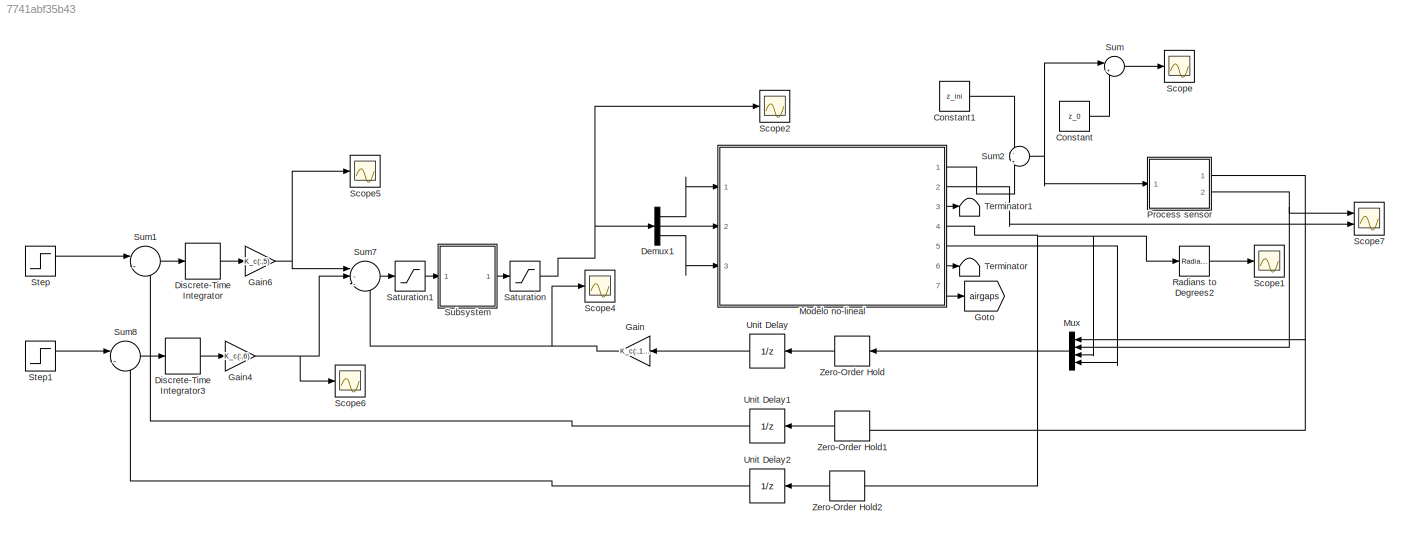
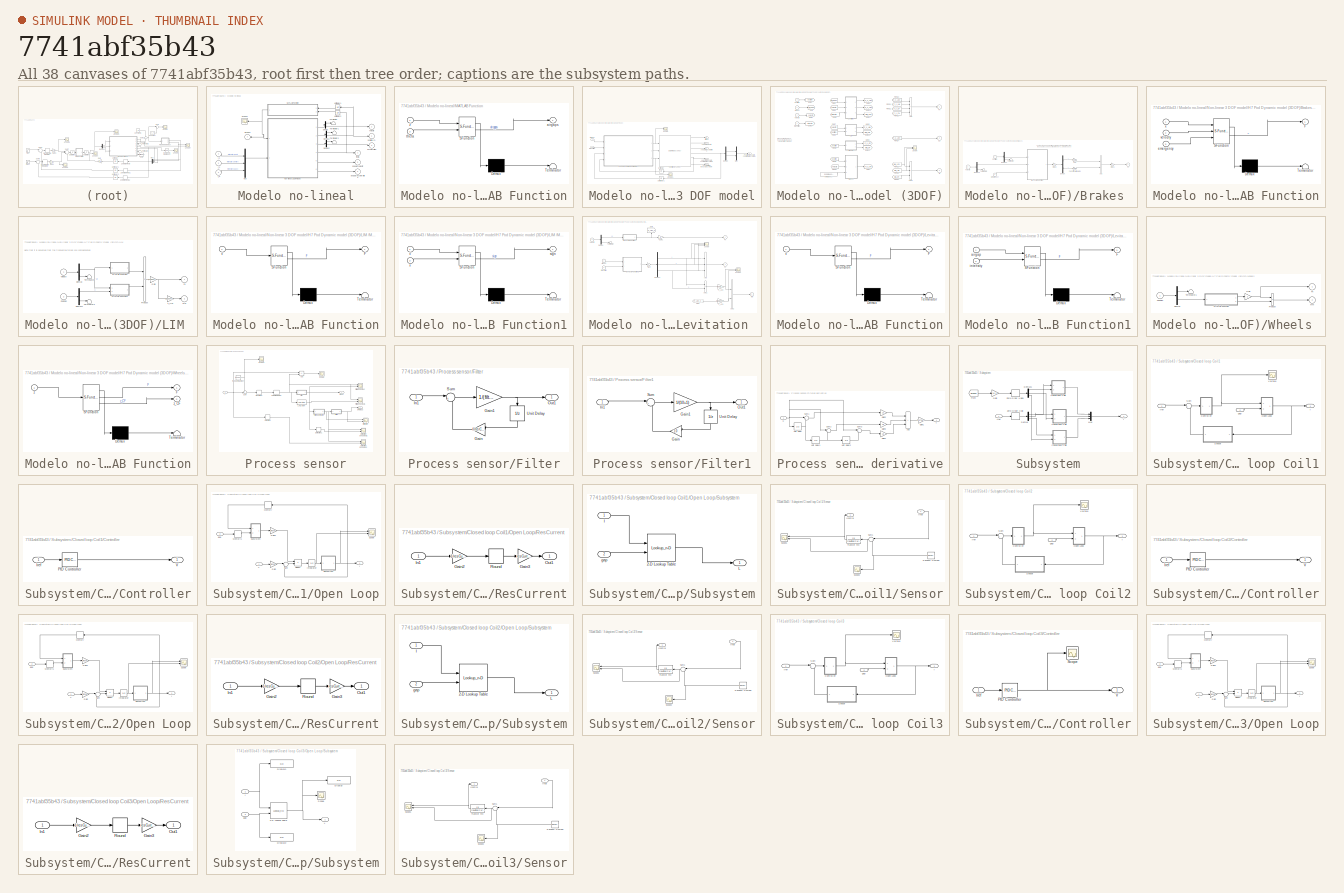
[diagram: thumbnail index - all 38 canvases of the model, root first then tree order]
MODEL slx_7741abf35b43
KIND model
CONFIG AbsTol = auto
CONFIG EnableMultiTasking = off
CONFIG FixedStep = auto
CONFIG MaxStep = auto
CONFIG MinStep = auto
CONFIG RelTol = 1e-9
CONFIG SampleTimeConstraint = Unconstrained
CONFIG Solver = ode45
CONFIG SolverName = ode45
CONFIG StartTime = 0.0
CONFIG StopTime = 20
BLOCK [Constant] Constant
  Value = z_0
BLOCK [Constant] Constant1
  SampleTime = T
  Value = z_ini
BLOCK [Demux] Demux1
  Outputs = 3
  Ports = [1, 3]
BLOCK [DiscreteIntegrator] Discrete-Time Integrator
  ICPrevOutput = DiscIntNeverNeededParam
  ICPrevScaledInput = DiscIntNeverNeededParam
  InitialConditionSetting = Auto
  Ports = [1, 1]
  SampleTime = T
BLOCK [DiscreteIntegrator] Discrete-Time Integrator3
  ICPrevOutput = DiscIntNeverNeededParam
  ICPrevScaledInput = DiscIntNeverNeededParam
  InitialConditionSetting = Auto
  Ports = [1, 1]
  SampleTime = T
BLOCK [Gain] Gain
  Gain = K_c(:,1:4)
  Multiplication = Matrix(K*u)
BLOCK [Gain] Gain4
  Gain = K_c(:,6)
BLOCK [Gain] Gain6
  Gain = K_c(:,5)
BLOCK [Goto] Goto
  GotoTag = airgaps
  TagVisibility = global
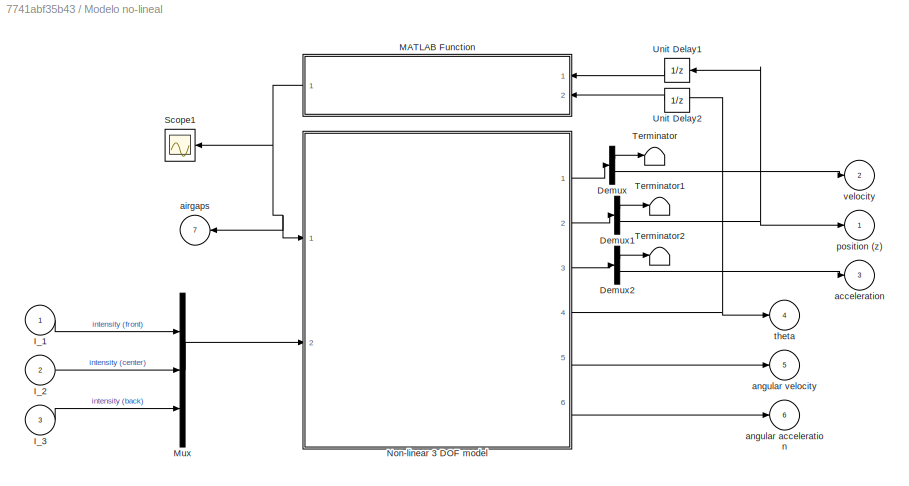
BLOCK [SubSystem] Modelo no-lineal
  Ports = [3, 7]
  RequestExecContextInheritance = off
BLOCK [Demux] Modelo no-lineal/Demux
  Outputs = 2
  Ports = [1, 2]
BLOCK [Demux] Modelo no-lineal/Demux1
  Outputs = 2
  Ports = [1, 2]
BLOCK [Demux] Modelo no-lineal/Demux2
  Outputs = 2
  Ports = [1, 2]
BLOCK [Inport] Modelo no-lineal/I_1
BLOCK [Inport] Modelo no-lineal/I_2
  Port = 2
BLOCK [Inport] Modelo no-lineal/I_3
  Port = 3
BLOCK [SubSystem] Modelo no-lineal/MATLAB Function
  ErrorFcn = Stateflow.Translate.translate
  PermitHierarchicalResolution = ExplicitOnly
  Ports = [2, 1]
  RequestExecContextInheritance = off
  SFBlockType = MATLAB Function
  TreatAsAtomicUnit = on
BLOCK [Demux] Modelo no-lineal/MATLAB Function/ Demux 
  Outputs = 1
  Ports = [1, 1]
BLOCK [S-Function] Modelo no-lineal/MATLAB Function/ SFunction 
  EnableBusSupport = on
  FunctionName = sf_sfun
  Parameters = pod
  PortCounts = [2 2]
  Ports = [2, 2]
  SFcnIsStateOwnerBlock = off
  SFunctionDeploymentMode = off
  Tag = Stateflow S-Function R19_Modelo_control_INDUCTANCIA_c_2GDL_2021 2
BLOCK [Terminator] Modelo no-lineal/MATLAB Function/ Terminator 
BLOCK [Outport] Modelo no-lineal/MATLAB Function/airgaps
BLOCK [Inport] Modelo no-lineal/MATLAB Function/theta
  Port = 2
BLOCK [Inport] Modelo no-lineal/MATLAB Function/z
BLOCK [Mux] Modelo no-lineal/Mux
  DisplayOption = bar
  Inputs = 3
  Ports = [3, 1]
BLOCK [SubSystem] Modelo no-lineal/Non-linear 3 DOF model
  AncestorBlock = libH7_3DOF/Non-linear 3 DOF model
  Ports = [2, 6]
  RequestExecContextInheritance = off
BLOCK [Reference] Modelo no-lineal/Non-linear 3 DOF model/3dof (Body Axes)  REF=shared3dof/3DOF (Body Axes)
  Ports = [3, 6]
  SourceBlock = shared3dof/3DOF (Body Axes)
  SourceProductBaseCode = AE,PW,DR,MT,UV,VE
  SourceType = 3DOF EoM
BLOCK [Outport] Modelo no-lineal/Non-linear 3 DOF model/Acceleration (body-fixed coordinate system)
  Port = 3
BLOCK [Inport] Modelo no-lineal/Non-linear 3 DOF model/Airgaps
BLOCK [Outport] Modelo no-lineal/Non-linear 3 DOF model/Angular acceleration
  Port = 6
BLOCK [Outport] Modelo no-lineal/Non-linear 3 DOF model/Angular velocity
  Port = 5
BLOCK [Outport] Modelo no-lineal/Non-linear 3 DOF model/Attitude 
  Port = 4
BLOCK [Demux] Modelo no-lineal/Non-linear 3 DOF model/Demux
  Outputs = 2
  Ports = [1, 2]
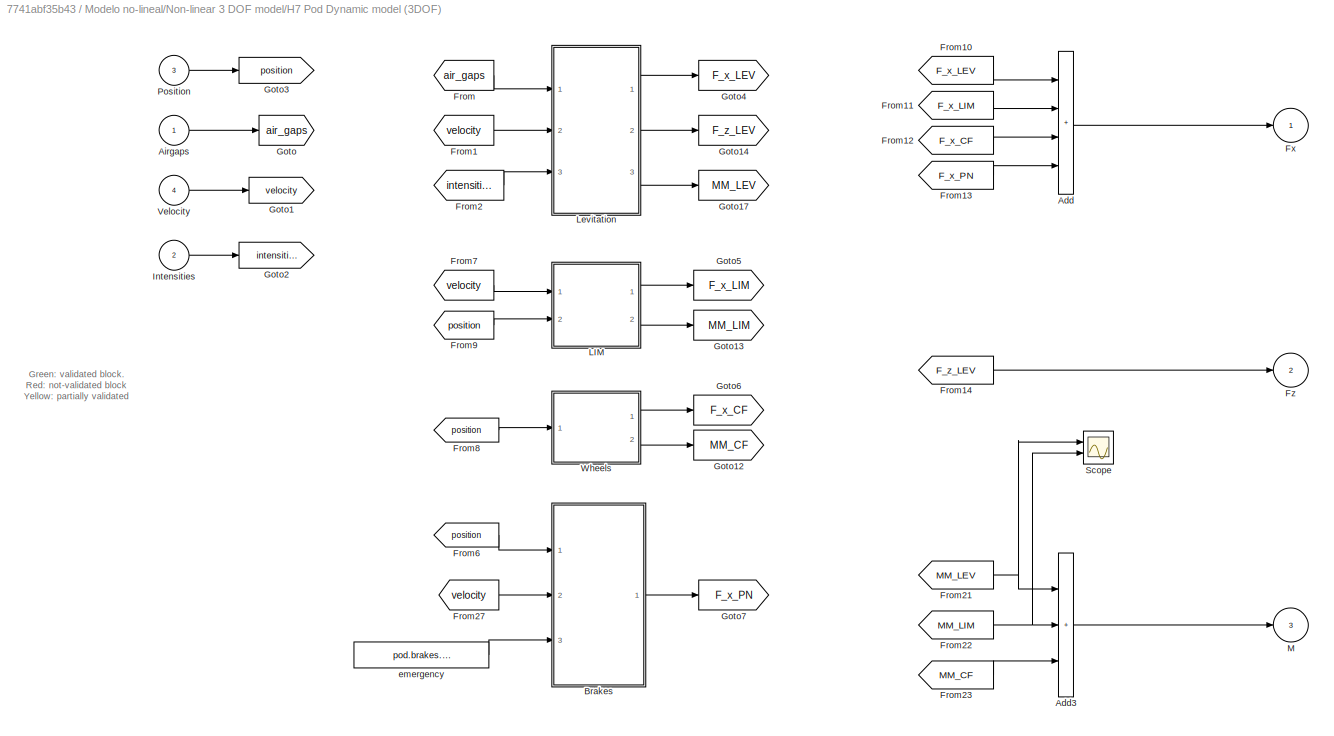
BLOCK [SubSystem] Modelo no-lineal/Non-linear 3 DOF model/H7 Pod Dynamic model (3DOF)
  AncestorBlock = libH7_3DOF/H7 Pod Dynamic model (3DOF)
  Ports = [4, 3]
  RequestExecContextInheritance = off
BLOCK [Sum] Modelo no-lineal/Non-linear 3 DOF model/H7 Pod Dynamic model (3DOF)/Add
  IconShape = rectangular
  Inputs = ++++
  Ports = [4, 1]
BLOCK [Sum] Modelo no-lineal/Non-linear 3 DOF model/H7 Pod Dynamic model (3DOF)/Add3
  IconShape = rectangular
  Inputs = +++
  Ports = [3, 1]
BLOCK [Inport] Modelo no-lineal/Non-linear 3 DOF model/H7 Pod Dynamic model (3DOF)/Airgaps
BLOCK [SubSystem] Modelo no-lineal/Non-linear 3 DOF model/H7 Pod Dynamic model (3DOF)/Brakes 
  AncestorBlock = libH7/H7 Pod Dynamic model/Brakes
  Ports = [3, 1]
  RequestExecContextInheritance = off
BLOCK [Sum] Modelo no-lineal/Non-linear 3 DOF model/H7 Pod Dynamic model (3DOF)/Brakes /Add
  IconShape = rectangular
  Ports = [2, 1]
BLOCK [Demux] Modelo no-lineal/Non-linear 3 DOF model/H7 Pod Dynamic model (3DOF)/Brakes /Demux
  Outputs = 2
  Ports = [1, 2]
BLOCK [Demux] Modelo no-lineal/Non-linear 3 DOF model/H7 Pod Dynamic model (3DOF)/Brakes /Demux2
  Outputs = 2
  Ports = [1, 2]
BLOCK [Demux] Modelo no-lineal/Non-linear 3 DOF model/H7 Pod Dynamic model (3DOF)/Brakes /Demux3
  Outputs = 2
  Ports = [1, 2]
BLOCK [Inport] Modelo no-lineal/Non-linear 3 DOF model/H7 Pod Dynamic model (3DOF)/Brakes /Emergency
  Port = 3
BLOCK [Gain] Modelo no-lineal/Non-linear 3 DOF model/H7 Pod Dynamic model (3DOF)/Brakes /Functionality gains
  Gain = pod.brakes.working_actuators(2)
BLOCK [Outport] Modelo no-lineal/Non-linear 3 DOF model/H7 Pod Dynamic model (3DOF)/Brakes /Fx
BLOCK [Gain] Modelo no-lineal/Non-linear 3 DOF model/H7 Pod Dynamic model (3DOF)/Brakes /Gain
  Gain = pod.brakes.working_actuators(1)
BLOCK [Gain] Modelo no-lineal/Non-linear 3 DOF model/H7 Pod Dynamic model (3DOF)/Brakes /Gain1
  Gain = -1
BLOCK [Gain] Modelo no-lineal/Non-linear 3 DOF model/H7 Pod Dynamic model (3DOF)/Brakes /Gain2
  Gain = 2
BLOCK [SubSystem] Modelo no-lineal/Non-linear 3 DOF model/H7 Pod Dynamic model (3DOF)/Brakes /MATLAB Function
  ErrorFcn = Stateflow.Translate.translate
  PermitHierarchicalResolution = ExplicitOnly
  Ports = [3, 1]
  RequestExecContextInheritance = off
  SFBlockType = MATLAB Function
  TreatAsAtomicUnit = on
BLOCK [Demux] Modelo no-lineal/Non-linear 3 DOF model/H7 Pod Dynamic model (3DOF)/Brakes /MATLAB Function/ Demux 
  Outputs = 1
  Ports = [1, 1]
BLOCK [S-Function] Modelo no-lineal/Non-linear 3 DOF model/H7 Pod Dynamic model (3DOF)/Brakes /MATLAB Function/ SFunction 
  EnableBusSupport = on
  FunctionName = sf_sfun
  Parameters = pod
  PortCounts = [3 2]
  Ports = [3, 2]
  SFcnIsStateOwnerBlock = off
  SFunctionDeploymentMode = off
  Tag = Stateflow S-Function R19_Modelo_control_INDUCTANCIA_c_2GDL_2021 16
BLOCK [Terminator] Modelo no-lineal/Non-linear 3 DOF model/H7 Pod Dynamic model (3DOF)/Brakes /MATLAB Function/ Terminator 
BLOCK [Outport] Modelo no-lineal/Non-linear 3 DOF model/H7 Pod Dynamic model (3DOF)/Brakes /MATLAB Function/F
BLOCK [Inport] Modelo no-lineal/Non-linear 3 DOF model/H7 Pod Dynamic model (3DOF)/Brakes /MATLAB Function/emergency
  Port = 3
BLOCK [Inport] Modelo no-lineal/Non-linear 3 DOF model/H7 Pod Dynamic model (3DOF)/Brakes /MATLAB Function/velocity
  Port = 2
BLOCK [Inport] Modelo no-lineal/Non-linear 3 DOF model/H7 Pod Dynamic model (3DOF)/Brakes /MATLAB Function/x
BLOCK [Inport] Modelo no-lineal/Non-linear 3 DOF model/H7 Pod Dynamic model (3DOF)/Brakes /Position
BLOCK [Terminator] Modelo no-lineal/Non-linear 3 DOF model/H7 Pod Dynamic model (3DOF)/Brakes /Terminator
BLOCK [Terminator] Modelo no-lineal/Non-linear 3 DOF model/H7 Pod Dynamic model (3DOF)/Brakes /Terminator2
BLOCK [Inport] Modelo no-lineal/Non-linear 3 DOF model/H7 Pod Dynamic model (3DOF)/Brakes /velocity
  Port = 2
BLOCK [From] Modelo no-lineal/Non-linear 3 DOF model/H7 Pod Dynamic model (3DOF)/From
  GotoTag = air_gaps
BLOCK [From] Modelo no-lineal/Non-linear 3 DOF model/H7 Pod Dynamic model (3DOF)/From1
  GotoTag = velocity
BLOCK [From] Modelo no-lineal/Non-linear 3 DOF model/H7 Pod Dynamic model (3DOF)/From10
  GotoTag = F_x_LEV
BLOCK [From] Modelo no-lineal/Non-linear 3 DOF model/H7 Pod Dynamic model (3DOF)/From11
  GotoTag = F_x_LIM
BLOCK [From] Modelo no-lineal/Non-linear 3 DOF model/H7 Pod Dynamic model (3DOF)/From12
  Commented = on
  GotoTag = F_x_CF
BLOCK [From] Modelo no-lineal/Non-linear 3 DOF model/H7 Pod Dynamic model (3DOF)/From13
  GotoTag = F_x_PN
BLOCK [From] Modelo no-lineal/Non-linear 3 DOF model/H7 Pod Dynamic model (3DOF)/From14
  GotoTag = F_z_LEV
BLOCK [From] Modelo no-lineal/Non-linear 3 DOF model/H7 Pod Dynamic model (3DOF)/From2
  GotoTag = intensities
BLOCK [From] Modelo no-lineal/Non-linear 3 DOF model/H7 Pod Dynamic model (3DOF)/From21
  GotoTag = MM_LEV
BLOCK [From] Modelo no-lineal/Non-linear 3 DOF model/H7 Pod Dynamic model (3DOF)/From22
  GotoTag = MM_LIM
BLOCK [From] Modelo no-lineal/Non-linear 3 DOF model/H7 Pod Dynamic model (3DOF)/From23
  Commented = on
  GotoTag = MM_CF
BLOCK [From] Modelo no-lineal/Non-linear 3 DOF model/H7 Pod Dynamic model (3DOF)/From27
  GotoTag = velocity
BLOCK [From] Modelo no-lineal/Non-linear 3 DOF model/H7 Pod Dynamic model (3DOF)/From6
  GotoTag = position
BLOCK [From] Modelo no-lineal/Non-linear 3 DOF model/H7 Pod Dynamic model (3DOF)/From7
  GotoTag = velocity
BLOCK [From] Modelo no-lineal/Non-linear 3 DOF model/H7 Pod Dynamic model (3DOF)/From8
  Commented = on
  GotoTag = position
BLOCK [From] Modelo no-lineal/Non-linear 3 DOF model/H7 Pod Dynamic model (3DOF)/From9
  GotoTag = position
BLOCK [Outport] Modelo no-lineal/Non-linear 3 DOF model/H7 Pod Dynamic model (3DOF)/Fx
BLOCK [Outport] Modelo no-lineal/Non-linear 3 DOF model/H7 Pod Dynamic model (3DOF)/Fz
  Port = 2
BLOCK [Goto] Modelo no-lineal/Non-linear 3 DOF model/H7 Pod Dynamic model (3DOF)/Goto
  GotoTag = air_gaps
BLOCK [Goto] Modelo no-lineal/Non-linear 3 DOF model/H7 Pod Dynamic model (3DOF)/Goto1
  GotoTag = velocity
BLOCK [Goto] Modelo no-lineal/Non-linear 3 DOF model/H7 Pod Dynamic model (3DOF)/Goto12
  Commented = on
  GotoTag = MM_CF
BLOCK [Goto] Modelo no-lineal/Non-linear 3 DOF model/H7 Pod Dynamic model (3DOF)/Goto13
  GotoTag = MM_LIM
BLOCK [Goto] Modelo no-lineal/Non-linear 3 DOF model/H7 Pod Dynamic model (3DOF)/Goto14
  GotoTag = F_z_LEV
BLOCK [Goto] Modelo no-lineal/Non-linear 3 DOF model/H7 Pod Dynamic model (3DOF)/Goto17
  GotoTag = MM_LEV
BLOCK [Goto] Modelo no-lineal/Non-linear 3 DOF model/H7 Pod Dynamic model (3DOF)/Goto2
  GotoTag = intensities
BLOCK [Goto] Modelo no-lineal/Non-linear 3 DOF model/H7 Pod Dynamic model (3DOF)/Goto3
  GotoTag = position
BLOCK [Goto] Modelo no-lineal/Non-linear 3 DOF model/H7 Pod Dynamic model (3DOF)/Goto4
  GotoTag = F_x_LEV
BLOCK [Goto] Modelo no-lineal/Non-linear 3 DOF model/H7 Pod Dynamic model (3DOF)/Goto5
  GotoTag = F_x_LIM
BLOCK [Goto] Modelo no-lineal/Non-linear 3 DOF model/H7 Pod Dynamic model (3DOF)/Goto6
  Commented = on
  GotoTag = F_x_CF
BLOCK [Goto] Modelo no-lineal/Non-linear 3 DOF model/H7 Pod Dynamic model (3DOF)/Goto7
  GotoTag = F_x_PN
BLOCK [Inport] Modelo no-lineal/Non-linear 3 DOF model/H7 Pod Dynamic model (3DOF)/Intensities
  Port = 2
BLOCK [SubSystem] Modelo no-lineal/Non-linear 3 DOF model/H7 Pod Dynamic model (3DOF)/LIM 
  AncestorBlock = libH7/H7 Pod Dynamic model/LIM
  Ports = [2, 2]
  RequestExecContextInheritance = off
BLOCK [Demux] Modelo no-lineal/Non-linear 3 DOF model/H7 Pod Dynamic model (3DOF)/LIM /Demux
  Outputs = 2
  Ports = [1, 2]
BLOCK [Demux] Modelo no-lineal/Non-linear 3 DOF model/H7 Pod Dynamic model (3DOF)/LIM /Demux1
  Outputs = 2
  Ports = [1, 2]
BLOCK [Outport] Modelo no-lineal/Non-linear 3 DOF model/H7 Pod Dynamic model (3DOF)/LIM /Fx
BLOCK [Gain] Modelo no-lineal/Non-linear 3 DOF model/H7 Pod Dynamic model (3DOF)/LIM /Gain
  Gain = pod.general.propulsion_on
BLOCK [SubSystem] Modelo no-lineal/Non-linear 3 DOF model/H7 Pod Dynamic model (3DOF)/LIM /MATLAB Function
  ErrorFcn = Stateflow.Translate.translate
  PermitHierarchicalResolution = ExplicitOnly
  Ports = [1, 1]
  RequestExecContextInheritance = off
  SFBlockType = MATLAB Function
  TreatAsAtomicUnit = on
BLOCK [Demux] Modelo no-lineal/Non-linear 3 DOF model/H7 Pod Dynamic model (3DOF)/LIM /MATLAB Function/ Demux 
  Outputs = 1
  Ports = [1, 1]
BLOCK [S-Function] Modelo no-lineal/Non-linear 3 DOF model/H7 Pod Dynamic model (3DOF)/LIM /MATLAB Function/ SFunction 
  EnableBusSupport = on
  FunctionName = sf_sfun
  Parameters = pod
  PortCounts = [1 2]
  Ports = [1, 2]
  SFcnIsStateOwnerBlock = off
  SFunctionDeploymentMode = off
  Tag = Stateflow S-Function R19_Modelo_control_INDUCTANCIA_c_2GDL_2021 17
BLOCK [Terminator] Modelo no-lineal/Non-linear 3 DOF model/H7 Pod Dynamic model (3DOF)/LIM /MATLAB Function/ Terminator 
BLOCK [Outport] Modelo no-lineal/Non-linear 3 DOF model/H7 Pod Dynamic model (3DOF)/LIM /MATLAB Function/F
BLOCK [Inport] Modelo no-lineal/Non-linear 3 DOF model/H7 Pod Dynamic model (3DOF)/LIM /MATLAB Function/v
BLOCK [SubSystem] Modelo no-lineal/Non-linear 3 DOF model/H7 Pod Dynamic model (3DOF)/LIM /MATLAB Function1
  ErrorFcn = Stateflow.Translate.translate
  PermitHierarchicalResolution = ExplicitOnly
  Ports = [2, 1]
  RequestExecContextInheritance = off
  SFBlockType = MATLAB Function
  TreatAsAtomicUnit = on
BLOCK [Demux] Modelo no-lineal/Non-linear 3 DOF model/H7 Pod Dynamic model (3DOF)/LIM /MATLAB Function1/ Demux 
  Outputs = 1
  Ports = [1, 1]
BLOCK [S-Function] Modelo no-lineal/Non-linear 3 DOF model/H7 Pod Dynamic model (3DOF)/LIM /MATLAB Function1/ SFunction 
  EnableBusSupport = on
  FunctionName = sf_sfun
  Parameters = pod
  PortCounts = [2 2]
  Ports = [2, 2]
  SFcnIsStateOwnerBlock = off
  SFunctionDeploymentMode = off
  Tag = Stateflow S-Function R19_Modelo_control_INDUCTANCIA_c_2GDL_2021 18
BLOCK [Terminator] Modelo no-lineal/Non-linear 3 DOF model/H7 Pod Dynamic model (3DOF)/LIM /MATLAB Function1/ Terminator 
BLOCK [Outport] Modelo no-lineal/Non-linear 3 DOF model/H7 Pod Dynamic model (3DOF)/LIM /MATLAB Function1/sign
BLOCK [Inport] Modelo no-lineal/Non-linear 3 DOF model/H7 Pod Dynamic model (3DOF)/LIM /MATLAB Function1/v
BLOCK [Inport] Modelo no-lineal/Non-linear 3 DOF model/H7 Pod Dynamic model (3DOF)/LIM /MATLAB Function1/x
  Port = 2
BLOCK [Outport] Modelo no-lineal/Non-linear 3 DOF model/H7 Pod Dynamic model (3DOF)/LIM /MM
  Port = 2
BLOCK [Inport] Modelo no-lineal/Non-linear 3 DOF model/H7 Pod Dynamic model (3DOF)/LIM /Position
  Port = 2
BLOCK [Product] Modelo no-lineal/Non-linear 3 DOF model/H7 Pod Dynamic model (3DOF)/LIM /Product
  Ports = [2, 1]
BLOCK [Terminator] Modelo no-lineal/Non-linear 3 DOF model/H7 Pod Dynamic model (3DOF)/LIM /Terminator
BLOCK [Terminator] Modelo no-lineal/Non-linear 3 DOF model/H7 Pod Dynamic model (3DOF)/LIM /Terminator2
BLOCK [Inport] Modelo no-lineal/Non-linear 3 DOF model/H7 Pod Dynamic model (3DOF)/LIM /Velocity
BLOCK [Gain] Modelo no-lineal/Non-linear 3 DOF model/H7 Pod Dynamic model (3DOF)/LIM /z_LIM
  Gain = pod.geometry.z_LIM
BLOCK [SubSystem] Modelo no-lineal/Non-linear 3 DOF model/H7 Pod Dynamic model (3DOF)/Levitation 
  AncestorBlock = libH7/H7 Pod Dynamic model/Levitation
  Ports = [3, 3]
  RequestExecContextInheritance = off
BLOCK [Sum] Modelo no-lineal/Non-linear 3 DOF model/H7 Pod Dynamic model (3DOF)/Levitation /Add
  IconShape = rectangular
  Inputs = +++
  Ports = [3, 1]
BLOCK [Sum] Modelo no-lineal/Non-linear 3 DOF model/H7 Pod Dynamic model (3DOF)/Levitation /Add1
  IconShape = rectangular
  Inputs = +-
  Ports = [2, 1]
BLOCK [Sum] Modelo no-lineal/Non-linear 3 DOF model/H7 Pod Dynamic model (3DOF)/Levitation /Add2
  IconShape = rectangular
  Ports = [2, 1]
BLOCK [Inport] Modelo no-lineal/Non-linear 3 DOF model/H7 Pod Dynamic model (3DOF)/Levitation /Airgaps
BLOCK [Demux] Modelo no-lineal/Non-linear 3 DOF model/H7 Pod Dynamic model (3DOF)/Levitation /Demux
  Outputs = 2
  Ports = [1, 2]
BLOCK [Demux] Modelo no-lineal/Non-linear 3 DOF model/H7 Pod Dynamic model (3DOF)/Levitation /Demux1
  Outputs = 3
  Ports = [1, 3]
BLOCK [From] Modelo no-lineal/Non-linear 3 DOF model/H7 Pod Dynamic model (3DOF)/Levitation /From
  GotoTag = F_LEV_X
BLOCK [Outport] Modelo no-lineal/Non-linear 3 DOF model/H7 Pod Dynamic model (3DOF)/Levitation /Fx
BLOCK [Outport] Modelo no-lineal/Non-linear 3 DOF model/H7 Pod Dynamic model (3DOF)/Levitation /Fz
  Port = 2
BLOCK [Gain] Modelo no-lineal/Non-linear 3 DOF model/H7 Pod Dynamic model (3DOF)/Levitation /Gain
  Gain = -2
BLOCK [Gain] Modelo no-lineal/Non-linear 3 DOF model/H7 Pod Dynamic model (3DOF)/Levitation /Gain1
  Gain = -6
BLOCK [Goto] Modelo no-lineal/Non-linear 3 DOF model/H7 Pod Dynamic model (3DOF)/Levitation /Goto
  GotoTag = F_LEV_X
BLOCK [Inport] Modelo no-lineal/Non-linear 3 DOF model/H7 Pod Dynamic model (3DOF)/Levitation /Intensities
  Port = 3
BLOCK [SubSystem] Modelo no-lineal/Non-linear 3 DOF model/H7 Pod Dynamic model (3DOF)/Levitation /MATLAB Function
  ErrorFcn = Stateflow.Translate.translate
  PermitHierarchicalResolution = ExplicitOnly
  Ports = [1, 1]
  RequestExecContextInheritance = off
  SFBlockType = MATLAB Function
  TreatAsAtomicUnit = on
BLOCK [Demux] Modelo no-lineal/Non-linear 3 DOF model/H7 Pod Dynamic model (3DOF)/Levitation /MATLAB Function/ Demux 
  Outputs = 1
  Ports = [1, 1]
BLOCK [S-Function] Modelo no-lineal/Non-linear 3 DOF model/H7 Pod Dynamic model (3DOF)/Levitation /MATLAB Function/ SFunction 
  EnableBusSupport = on
  FunctionName = sf_sfun
  Parameters = pod
  PortCounts = [1 2]
  Ports = [1, 2]
  SFcnIsStateOwnerBlock = off
  SFunctionDeploymentMode = off
  Tag = Stateflow S-Function R19_Modelo_control_INDUCTANCIA_c_2GDL_2021 19
BLOCK [Terminator] Modelo no-lineal/Non-linear 3 DOF model/H7 Pod Dynamic model (3DOF)/Levitation /MATLAB Function/ Terminator 
BLOCK [Outport] Modelo no-lineal/Non-linear 3 DOF model/H7 Pod Dynamic model (3DOF)/Levitation /MATLAB Function/F
BLOCK [Inport] Modelo no-lineal/Non-linear 3 DOF model/H7 Pod Dynamic model (3DOF)/Levitation /MATLAB Function/v
BLOCK [SubSystem] Modelo no-lineal/Non-linear 3 DOF model/H7 Pod Dynamic model (3DOF)/Levitation /MATLAB Function1
  ErrorFcn = Stateflow.Translate.translate
  PermitHierarchicalResolution = ExplicitOnly
  Ports = [2, 1]
  RequestExecContextInheritance = off
  SFBlockType = MATLAB Function
  TreatAsAtomicUnit = on
BLOCK [Demux] Modelo no-lineal/Non-linear 3 DOF model/H7 Pod Dynamic model (3DOF)/Levitation /MATLAB Function1/ Demux 
  Outputs = 1
  Ports = [1, 1]
BLOCK [S-Function] Modelo no-lineal/Non-linear 3 DOF model/H7 Pod Dynamic model (3DOF)/Levitation /MATLAB Function1/ SFunction 
  EnableBusSupport = on
  FunctionName = sf_sfun
  Parameters = pod
  PortCounts = [2 2]
  Ports = [2, 2]
  SFcnIsStateOwnerBlock = off
  SFunctionDeploymentMode = off
  Tag = Stateflow S-Function R19_Modelo_control_INDUCTANCIA_c_2GDL_2021 20
BLOCK [Terminator] Modelo no-lineal/Non-linear 3 DOF model/H7 Pod Dynamic model (3DOF)/Levitation /MATLAB Function1/ Terminator 
BLOCK [Outport] Modelo no-lineal/Non-linear 3 DOF model/H7 Pod Dynamic model (3DOF)/Levitation /MATLAB Function1/F
BLOCK [Inport] Modelo no-lineal/Non-linear 3 DOF model/H7 Pod Dynamic model (3DOF)/Levitation /MATLAB Function1/airgap
BLOCK [Inport] Modelo no-lineal/Non-linear 3 DOF model/H7 Pod Dynamic model (3DOF)/Levitation /MATLAB Function1/intensity
  Port = 2
BLOCK [Outport] Modelo no-lineal/Non-linear 3 DOF model/H7 Pod Dynamic model (3DOF)/Levitation /MM
  Port = 3
BLOCK [Scope] Modelo no-lineal/Non-linear 3 DOF model/H7 Pod Dynamic model (3DOF)/Levitation /Scope
  Floating = off
  NumInputPorts = 3
  Ports = [3]
  ScopeSpecificationString = Simulink.scopes.TimeScopeBlockCfg('CurrentConfiguration', extmgr.ConfigurationSet(extmgr.Configuration('Core','General UI',true),extmgr.Configuration('Core','Source UI',true),extmgr.Configuration('Sources','WiredSimulink',true,'DataLoggingVariableName','ScopeData5'),extmgr.Configuration('Visuals','Time Domain',true,'SerializedDisplays',{struct('MinYLimReal','-560.11388','MaxYLimReal','-222.68038',...<+1438ch>
BLOCK [Scope] Modelo no-lineal/Non-linear 3 DOF model/H7 Pod Dynamic model (3DOF)/Levitation /Scope1
  Floating = off
  NumInputPorts = 2
  Ports = [2]
  ScopeSpecificationString = Simulink.scopes.TimeScopeBlockCfg('CurrentConfiguration', extmgr.ConfigurationSet(extmgr.Configuration('Core','General UI',true),extmgr.Configuration('Core','Source UI',true),extmgr.Configuration('Sources','WiredSimulink',true,'DataLoggingVariableName','ScopeData6'),extmgr.Configuration('Visuals','Time Domain',true),extmgr.Configuration('Tools','Plot Navigation',true),extmgr.Configuration('Tools',...<+40ch>
BLOCK [Terminator] Modelo no-lineal/Non-linear 3 DOF model/H7 Pod Dynamic model (3DOF)/Levitation /Terminator
BLOCK [Inport] Modelo no-lineal/Non-linear 3 DOF model/H7 Pod Dynamic model (3DOF)/Levitation /Velocity
  Port = 2
BLOCK [Gain] Modelo no-lineal/Non-linear 3 DOF model/H7 Pod Dynamic model (3DOF)/Levitation /x_LEV
  Gain = - pod.geometry.x_LEV
BLOCK [Gain] Modelo no-lineal/Non-linear 3 DOF model/H7 Pod Dynamic model (3DOF)/Levitation /z_LEV
  Gain = pod.geometry.z_LEV
BLOCK [Outport] Modelo no-lineal/Non-linear 3 DOF model/H7 Pod Dynamic model (3DOF)/M
  Port = 3
BLOCK [Inport] Modelo no-lineal/Non-linear 3 DOF model/H7 Pod Dynamic model (3DOF)/Position
  Port = 3
BLOCK [Scope] Modelo no-lineal/Non-linear 3 DOF model/H7 Pod Dynamic model (3DOF)/Scope
  Floating = off
  NumInputPorts = 2
  Ports = [2]
  ScopeSpecificationString = Simulink.scopes.TimeScopeBlockCfg('CurrentConfiguration', extmgr.ConfigurationSet(extmgr.Configuration('Core','General UI',true),extmgr.Configuration('Core','Source UI',true),extmgr.Configuration('Sources','WiredSimulink',true,'DataLoggingVariableName','ScopeData3'),extmgr.Configuration('Visuals','Time Domain',true,'SerializedDisplays',{struct('MinYLimReal','-86.85279','MaxYLimReal','89.64118','YL...<+1462ch>
BLOCK [Inport] Modelo no-lineal/Non-linear 3 DOF model/H7 Pod Dynamic model (3DOF)/Velocity
  Port = 4
BLOCK [SubSystem] Modelo no-lineal/Non-linear 3 DOF model/H7 Pod Dynamic model (3DOF)/Wheels 
  AncestorBlock = libH7/H7 Pod Dynamic model/Wheels
  Commented = on
  Ports = [1, 2]
  RequestExecContextInheritance = off
BLOCK [Demux] Modelo no-lineal/Non-linear 3 DOF model/H7 Pod Dynamic model (3DOF)/Wheels /Demux
  Outputs = 2
  Ports = [1, 2]
BLOCK [Outport] Modelo no-lineal/Non-linear 3 DOF model/H7 Pod Dynamic model (3DOF)/Wheels /Fx
BLOCK [Gain] Modelo no-lineal/Non-linear 3 DOF model/H7 Pod Dynamic model (3DOF)/Wheels /Gain
  Gain = 2
BLOCK [SubSystem] Modelo no-lineal/Non-linear 3 DOF model/H7 Pod Dynamic model (3DOF)/Wheels /MATLAB Function
  ErrorFcn = Stateflow.Translate.translate
  PermitHierarchicalResolution = ExplicitOnly
  Ports = [1, 2]
  RequestExecContextInheritance = off
  SFBlockType = MATLAB Function
  TreatAsAtomicUnit = on
BLOCK [Demux] Modelo no-lineal/Non-linear 3 DOF model/H7 Pod Dynamic model (3DOF)/Wheels /MATLAB Function/ Demux 
  Outputs = 1
  Ports = [1, 1]
BLOCK [S-Function] Modelo no-lineal/Non-linear 3 DOF model/H7 Pod Dynamic model (3DOF)/Wheels /MATLAB Function/ SFunction 
  EnableBusSupport = on
  FunctionName = sf_sfun
  Parameters = pod
  PortCounts = [1 3]
  Ports = [1, 3]
  SFcnIsStateOwnerBlock = off
  SFunctionDeploymentMode = off
  Tag = Stateflow S-Function 21
BLOCK [Terminator] Modelo no-lineal/Non-linear 3 DOF model/H7 Pod Dynamic model (3DOF)/Wheels /MATLAB Function/ Terminator 
BLOCK [Outport] Modelo no-lineal/Non-linear 3 DOF model/H7 Pod Dynamic model (3DOF)/Wheels /MATLAB Function/F
BLOCK [Inport] Modelo no-lineal/Non-linear 3 DOF model/H7 Pod Dynamic model (3DOF)/Wheels /MATLAB Function/z
BLOCK [Outport] Modelo no-lineal/Non-linear 3 DOF model/H7 Pod Dynamic model (3DOF)/Wheels /MATLAB Function/z_CF
  Port = 2
BLOCK [Outport] Modelo no-lineal/Non-linear 3 DOF model/H7 Pod Dynamic model (3DOF)/Wheels /MM
  Port = 2
BLOCK [Inport] Modelo no-lineal/Non-linear 3 DOF model/H7 Pod Dynamic model (3DOF)/Wheels /Position
BLOCK [Product] Modelo no-lineal/Non-linear 3 DOF model/H7 Pod Dynamic model (3DOF)/Wheels /Product
  Ports = [2, 1]
BLOCK [Terminator] Modelo no-lineal/Non-linear 3 DOF model/H7 Pod Dynamic model (3DOF)/Wheels /Terminator1
BLOCK [Constant] Modelo no-lineal/Non-linear 3 DOF model/H7 Pod Dynamic model (3DOF)/emergency
  Value = pod.brakes.emergency_flag
BLOCK [Inport] Modelo no-lineal/Non-linear 3 DOF model/Intensities
  Port = 2
BLOCK [Mux] Modelo no-lineal/Non-linear 3 DOF model/Mux
  DisplayOption = bar
  Inputs = 2
  Ports = [2, 1]
BLOCK [Outport] Modelo no-lineal/Non-linear 3 DOF model/Position (absolute coordinate system)
  Port = 2
BLOCK [Scope] Modelo no-lineal/Non-linear 3 DOF model/Scope
  Floating = off
  NumInputPorts = 1
  Ports = [1]
  ScopeSpecificationString = Simulink.scopes.TimeScopeBlockCfg('CurrentConfiguration', extmgr.ConfigurationSet(extmgr.Configuration('Core','General UI',true),extmgr.Configuration('Core','Source UI',true),extmgr.Configuration('Sources','WiredSimulink',true,'DataLoggingVariableName','ScopeData3'),extmgr.Configuration('Visuals','Time Domain',true,'SerializedDisplays',{struct('MinYLimReal','-314.7799','MaxYLimReal','293.64221','Y...<+1449ch>
BLOCK [Scope] Modelo no-lineal/Non-linear 3 DOF model/Scope1
  Floating = off
  NumInputPorts = 1
  Ports = [1]
  ScopeSpecificationString = Simulink.scopes.TimeScopeBlockCfg('CurrentConfiguration', extmgr.ConfigurationSet(extmgr.Configuration('Core','General UI',true),extmgr.Configuration('Core','Source UI',true),extmgr.Configuration('Sources','WiredSimulink',true,'DataLoggingVariableName','ScopeData2'),extmgr.Configuration('Visuals','Time Domain',true,'SerializedDisplays',{struct('MinYLimReal','-1218970418421242.75','MaxYLimReal','10...<+1558ch>
BLOCK [UnitDelay] Modelo no-lineal/Non-linear 3 DOF model/Unit Delay
  HasFrameUpgradeWarning = on
  InitialCondition = [0,0]
  SampleTime = -1
BLOCK [UnitDelay] Modelo no-lineal/Non-linear 3 DOF model/Unit Delay1
  HasFrameUpgradeWarning = on
  InitialCondition = initial_conds.x_0(1:2:3)
  SampleTime = -1
BLOCK [Outport] Modelo no-lineal/Non-linear 3 DOF model/Velocity (absolute coordinate system)
BLOCK [Scope] Modelo no-lineal/Scope1
  Floating = off
  NumInputPorts = 1
  Ports = [1]
  ScopeSpecificationString = Simulink.scopes.TimeScopeBlockCfg('CurrentConfiguration', extmgr.ConfigurationSet(extmgr.Configuration('Core','General UI',true),extmgr.Configuration('Core','Source UI',true),extmgr.Configuration('Sources','WiredSimulink',true,'DataLoggingVariableName','ScopeData2'),extmgr.Configuration('Visuals','Time Domain',true,'SerializedDisplays',{struct('MinYLimReal','14.21487','MaxYLimReal','22.61704','YLa...<+1493ch>
BLOCK [Terminator] Modelo no-lineal/Terminator
BLOCK [Terminator] Modelo no-lineal/Terminator1
BLOCK [Terminator] Modelo no-lineal/Terminator2
BLOCK [UnitDelay] Modelo no-lineal/Unit Delay1
  HasFrameUpgradeWarning = on
  InitialCondition = initial_conds.x_0(3)
  SampleTime = -1
BLOCK [UnitDelay] Modelo no-lineal/Unit Delay2
  HasFrameUpgradeWarning = on
  SampleTime = -1
BLOCK [Outport] Modelo no-lineal/acceleration
  Port = 3
BLOCK [Outport] Modelo no-lineal/airgaps
  Port = 7
BLOCK [Outport] Modelo no-lineal/angular acceleration
  Port = 6
BLOCK [Outport] Modelo no-lineal/angular velocity
  Port = 5
BLOCK [Outport] Modelo no-lineal/position (z)
BLOCK [Outport] Modelo no-lineal/theta
  Port = 4
BLOCK [Outport] Modelo no-lineal/velocity
  Port = 2
BLOCK [Mux] Mux
  DisplayOption = bar
  Ports = [4, 1]
BLOCK [SubSystem] Process sensor
  Ports = [1, 2]
  RequestExecContextInheritance = off
BLOCK [Sum] Process sensor/Add
  IconShape = rectangular
  Inputs = +-
  Ports = [2, 1]
BLOCK [Derivative] Process sensor/Derivative
BLOCK [Scope] Process sensor/Derivative behaviour
  Floating = off
  NumInputPorts = 2
  Ports = [2]
  ScopeSpecificationString = Simulink.scopes.TimeScopeBlockCfg('CurrentConfiguration', extmgr.ConfigurationSet(extmgr.Configuration('Core','General UI',true),extmgr.Configuration('Core','Source UI',true),extmgr.Configuration('Sources','WiredSimulink',true,'DataLoggingVariableName','ScopeData4'),extmgr.Configuration('Visuals','Time Domain',true,'SerializedDisplays',{struct('MinYLimReal','-0.15001','MaxYLimReal','0.14625','YLab...<+1533ch>
BLOCK [Scope] Process sensor/Derivative behaviour1
  Floating = off
  NumInputPorts = 2
  Ports = [2]
  ScopeSpecificationString = Simulink.scopes.TimeScopeBlockCfg('CurrentConfiguration', extmgr.ConfigurationSet(extmgr.Configuration('Core','General UI',true),extmgr.Configuration('Core','Source UI',true),extmgr.Configuration('Sources','WiredSimulink',true,'DataLoggingVariableName','ScopeData2'),extmgr.Configuration('Visuals','Time Domain',true,'SerializedDisplays',{struct('MinYLimReal','-0.11931','MaxYLimReal','0.11364','YLab...<+1534ch>
BLOCK [Derivative] Process sensor/Derivative1
BLOCK [SubSystem] Process sensor/Filter
  Ports = [1, 1]
  RequestExecContextInheritance = off
BLOCK [Scope] Process sensor/Filter behaviour
  Floating = off
  NumInputPorts = 2
  Ports = [2]
  ScopeSpecificationString = Simulink.scopes.TimeScopeBlockCfg('CurrentConfiguration', extmgr.ConfigurationSet(extmgr.Configuration('Core','General UI',true),extmgr.Configuration('Core','Source UI',true),extmgr.Configuration('Sources','WiredSimulink',true,'DataLoggingVariableName','ScopeData5'),extmgr.Configuration('Visuals','Time Domain',true,'SerializedDisplays',{struct('MinYLimReal','-947.79945','MaxYLimReal','105.32935','...<+1494ch>
BLOCK [Scope] Process sensor/Filter behaviour1
  Floating = off
  NumInputPorts = 2
  Ports = [2]
  ScopeSpecificationString = Simulink.scopes.TimeScopeBlockCfg('CurrentConfiguration', extmgr.ConfigurationSet(extmgr.Configuration('Core','General UI',true),extmgr.Configuration('Core','Source UI',true),extmgr.Configuration('Sources','WiredSimulink',true,'DataLoggingVariableName','ScopeData1'),extmgr.Configuration('Visuals','Time Domain',true,'SerializedDisplays',{struct('MinYLimReal','0.00061','MaxYLimReal','0.00097','YLabe...<+1466ch>
BLOCK [Scope] Process sensor/Filter deriv.
  Floating = off
  NumInputPorts = 2
  Ports = [2]
  ScopeSpecificationString = Simulink.scopes.TimeScopeBlockCfg('CurrentConfiguration', extmgr.ConfigurationSet(extmgr.Configuration('Core','General UI',true),extmgr.Configuration('Core','Source UI',true),extmgr.Configuration('Sources','WiredSimulink',true,'DataLoggingVariableName','ScopeData1'),extmgr.Configuration('Visuals','Time Domain',true,'SerializedDisplays',{struct('MinYLimReal','-0.03131','MaxYLimReal','0.02727','YLab...<+1534ch>
BLOCK [Gain] Process sensor/Filter/Gain
  Gain = filterConstant
BLOCK [Gain] Process sensor/Filter/Gain1
  Gain = 1/(filterConstant+1)
BLOCK [Inport] Process sensor/Filter/In1
BLOCK [Outport] Process sensor/Filter/Out1
BLOCK [Sum] Process sensor/Filter/Sum
  Inputs = |++
  Ports = [2, 1]
BLOCK [UnitDelay] Process sensor/Filter/Unit Delay
  HasFrameUpgradeWarning = on
  SampleTime = dTSensor
BLOCK [SubSystem] Process sensor/Filter1
  Ports = [1, 1]
  RequestExecContextInheritance = off
BLOCK [Gain] Process sensor/Filter1/Gain
  Gain = 10
BLOCK [Gain] Process sensor/Filter1/Gain1
  Gain = 1/(10+1)
BLOCK [Inport] Process sensor/Filter1/In1
BLOCK [Outport] Process sensor/Filter1/Out1
BLOCK [Sum] Process sensor/Filter1/Sum
  Inputs = |++
  Ports = [2, 1]
BLOCK [UnitDelay] Process sensor/Filter1/Unit Delay
  HasFrameUpgradeWarning = on
  SampleTime = dTSensor
BLOCK [SubSystem] Process sensor/Filtered derivative
  Ports = [1, 1]
  RequestExecContextInheritance = off
BLOCK [Sum] Process sensor/Filtered derivative/Add
  IconShape = rectangular
  Inputs = +++
  Ports = [3, 1]
BLOCK [Gain] Process sensor/Filtered derivative/Gain1
  Gain = 1/(dTSensor*3)
BLOCK [Gain] Process sensor/Filtered derivative/Gain2
  Gain = 1/1
BLOCK [Gain] Process sensor/Filtered derivative/Gain3
  Gain = 1/2
BLOCK [Gain] Process sensor/Filtered derivative/Gain4
  Gain = 1/3
BLOCK [Sum] Process sensor/Filtered derivative/Sum1
  Inputs = |+-
  Ports = [2, 1]
BLOCK [Sum] Process sensor/Filtered derivative/Sum2
  Inputs = |+-
  Ports = [2, 1]
BLOCK [Sum] Process sensor/Filtered derivative/Sum3
  Inputs = |+-
  Ports = [2, 1]
BLOCK [Inport] Process sensor/Filtered derivative/U
BLOCK [UnitDelay] Process sensor/Filtered derivative/Unit Delay
  HasFrameUpgradeWarning = on
  SampleTime = dTSensor
BLOCK [UnitDelay] Process sensor/Filtered derivative/Unit Delay1
  HasFrameUpgradeWarning = on
  SampleTime = dTSensor
BLOCK [UnitDelay] Process sensor/Filtered derivative/Unit Delay2
  HasFrameUpgradeWarning = on
  SampleTime = dTSensor
BLOCK [Outport] Process sensor/Filtered derivative/Y
BLOCK [Reference] Process sensor/LTI System  REF=cstblocks/LTI System
  Ports = [1, 1]
  SourceBlock = cstblocks/LTI System
  SourceProductBaseCode = CT
  SourceType = LTI Block
BLOCK [Quantizer] Process sensor/Quantizer
  QuantizationInterval = resSensor
BLOCK [RandomNumber] Process sensor/Random Number
  Variance = noiseSensor^2
BLOCK [Scope] Process sensor/Scope
  Floating = off
  NumInputPorts = 1
  Ports = [1]
  ScopeSpecificationString = Simulink.scopes.TimeScopeBlockCfg('CurrentConfiguration', extmgr.ConfigurationSet(extmgr.Configuration('Core','General UI',true),extmgr.Configuration('Core','Source UI',true),extmgr.Configuration('Sources','WiredSimulink',true,'DataLoggingVariableName','ScopeData2'),extmgr.Configuration('Visuals','Time Domain',true,'SerializedDisplays',{struct('MinYLimReal','-0.00015','MaxYLimReal','0.00015','YLab...<+1462ch>
BLOCK [Scope] Process sensor/Scope1
  Floating = off
  NumInputPorts = 1
  Ports = [1]
  ScopeSpecificationString = Simulink.scopes.TimeScopeBlockCfg('CurrentConfiguration', extmgr.ConfigurationSet(extmgr.Configuration('Core','General UI',true),extmgr.Configuration('Core','Source UI',true),extmgr.Configuration('Sources','WiredSimulink',true,'DataLoggingVariableName','ScopeData3'),extmgr.Configuration('Visuals','Time Domain',true,'SerializedDisplays',{struct('MinYLimReal','-0.00035','MaxYLimReal','0.00034','YLab...<+1472ch>
BLOCK [Sum] Process sensor/Sum
  Inputs = ++|
  Ports = [2, 1]
BLOCK [ZeroOrderHold] Process sensor/Zero-Order Hold1
  SampleTime = dTSensor
BLOCK [Outport] Process sensor/dRMeas
  Port = 2
BLOCK [Inport] Process sensor/r
BLOCK [Outport] Process sensor/rMeas
BLOCK [Reference] Radians to Degrees2  REF=simulink_extras/Transformations/Radians
to Degrees
  Ports = [1, 1]
  SourceBlock = simulink_extras/Transformations/Radians\nto Degrees
  SourceProductBaseCode = SL
  SourceType = RadiansToDegrees
BLOCK [Saturate] Saturation
  LowerLimit = -40
  UpperLimit = 40
BLOCK [Saturate] Saturation1
  LowerLimit = -40
  UpperLimit = 40
BLOCK [Scope] Scope
  Floating = off
  NumInputPorts = 1
  Ports = [1]
  ScopeSpecificationString = Simulink.scopes.TimeScopeBlockCfg('CurrentConfiguration', extmgr.ConfigurationSet(extmgr.Configuration('Core','General UI',true),extmgr.Configuration('Core','Source UI',true),extmgr.Configuration('Sources','WiredSimulink',true,'DataLoggingVariableName','ScopeData5'),extmgr.Configuration('Visuals','Time Domain',true,'SerializedDisplays',{struct('MinYLimReal','0.01577','MaxYLimReal','0.02132','YLabe...<+1790ch>
BLOCK [Scope] Scope1
  Floating = off
  NumInputPorts = 1
  Ports = [1]
  ScopeSpecificationString = Simulink.scopes.TimeScopeBlockCfg('CurrentConfiguration', extmgr.ConfigurationSet(extmgr.Configuration('Core','General UI',true),extmgr.Configuration('Core','Source UI',true),extmgr.Configuration('Sources','WiredSimulink',true,'DataLoggingVariableName','ScopeData1'),extmgr.Configuration('Visuals','Time Domain',true,'SerializedDisplays',{struct('MinYLimReal','-0.16671','MaxYLimReal','0.19251','YLab...<+1474ch>
BLOCK [Scope] Scope2
  Floating = off
  NumInputPorts = 1
  Ports = [1]
  ScopeSpecificationString = Simulink.scopes.TimeScopeBlockCfg('CurrentConfiguration', extmgr.ConfigurationSet(extmgr.Configuration('Core','General UI',true),extmgr.Configuration('Core','Source UI',true),extmgr.Configuration('Sources','WiredSimulink',true,'DataLoggingVariableName','ScopeData2'),extmgr.Configuration('Visuals','Time Domain',true,'SerializedDisplays',{struct('MinYLimReal','-17.21747','MaxYLimReal','32.74789','YL...<+1462ch>
BLOCK [Scope] Scope4
  Floating = off
  NumInputPorts = 1
  Ports = [1]
  ScopeSpecificationString = Simulink.scopes.TimeScopeBlockCfg('CurrentConfiguration', extmgr.ConfigurationSet(extmgr.Configuration('Core','General UI',true),extmgr.Configuration('Core','Source UI',true),extmgr.Configuration('Sources','WiredSimulink',true,'DataLoggingVariableName','ScopeData1'),extmgr.Configuration('Visuals','Time Domain',true,'SerializedDisplays',{struct('MinYLimReal','-28126.83017','MaxYLimReal','253126.516...<+1488ch>
BLOCK [Scope] Scope5
  Floating = off
  NumInputPorts = 1
  Ports = [1]
  ScopeSpecificationString = Simulink.scopes.TimeScopeBlockCfg('CurrentConfiguration', extmgr.ConfigurationSet(extmgr.Configuration('Core','General UI',true),extmgr.Configuration('Core','Source UI',true),extmgr.Configuration('Sources','WiredSimulink',true,'DataLoggingVariableName','ScopeData2'),extmgr.Configuration('Visuals','Time Domain',true,'SerializedDisplays',{struct('MinYLimReal','-864.89228','MaxYLimReal','99.33307','Y...<+1802ch>
BLOCK [Scope] Scope6
  Floating = off
  NumInputPorts = 1
  Ports = [1]
  ScopeSpecificationString = Simulink.scopes.TimeScopeBlockCfg('CurrentConfiguration', extmgr.ConfigurationSet(extmgr.Configuration('Core','General UI',true),extmgr.Configuration('Core','Source UI',true),extmgr.Configuration('Sources','WiredSimulink',true,'DataLoggingVariableName','ScopeData3'),extmgr.Configuration('Visuals','Time Domain',true,'SerializedDisplays',{struct('MinYLimReal','-235.87432','MaxYLimReal','337.88837','...<+1804ch>
BLOCK [Scope] Scope7
  Floating = off
  NumInputPorts = 2
  Ports = [2]
  ScopeSpecificationString = Simulink.scopes.TimeScopeBlockCfg('CurrentConfiguration', extmgr.ConfigurationSet(extmgr.Configuration('Core','General UI',true),extmgr.Configuration('Core','Source UI',true),extmgr.Configuration('Sources','WiredSimulink',true,'DataLoggingVariableName','ScopeData4'),extmgr.Configuration('Visuals','Time Domain',true,'SerializedDisplays',{struct('MinYLimReal','-84038739592395852435553216690371127287...<+3925ch>
BLOCK [Step] Step
  After = 0
  SampleTime = T
  Time = 0
BLOCK [Step] Step1
  After = 0
  SampleTime = T
  Time = 0
BLOCK [SubSystem] Subsystem
  Ports = [1, 1]
  RequestExecContextInheritance = off
BLOCK [SubSystem] Subsystem/Closed loop Coil1
  Ports = [2, 1]
  RequestExecContextInheritance = off
BLOCK [SubSystem] Subsystem/Closed loop Coil1/Controller
  Ports = [1, 1]
  RequestExecContextInheritance = off
BLOCK [Inport] Subsystem/Closed loop Coil1/Controller/Iref
BLOCK [Reference] Subsystem/Closed loop Coil1/Controller/PID Controller  REF=simulink/Continuous/PID Controller
  Ports = [1, 1]
  SourceBlock = simulink/Continuous/PID Controller
  SourceProductBaseCode = SL
  SourceType = PID 1dof
BLOCK [Outport] Subsystem/Closed loop Coil1/Controller/V
BLOCK [Outport] Subsystem/Closed loop Coil1/I
BLOCK [Inport] Subsystem/Closed loop Coil1/Iref
BLOCK [SubSystem] Subsystem/Closed loop Coil1/Open Loop
  Ports = [2, 1]
  RequestExecContextInheritance = off
BLOCK [Product] Subsystem/Closed loop Coil1/Open Loop/Divide1
  Inputs = /*
  Ports = [2, 1]
BLOCK [Gain] Subsystem/Closed loop Coil1/Open Loop/Gain
  Gain = 1/Rcoil
BLOCK [Gain] Subsystem/Closed loop Coil1/Open Loop/Gain1
  Gain = 1/Rcoil
BLOCK [Outport] Subsystem/Closed loop Coil1/Open Loop/I
BLOCK [Integrator] Subsystem/Closed loop Coil1/Open Loop/Integrator
  Ports = [1, 1]
BLOCK [Memory] Subsystem/Closed loop Coil1/Open Loop/Memory
BLOCK [Memory] Subsystem/Closed loop Coil1/Open Loop/Memory1
BLOCK [SubSystem] Subsystem/Closed loop Coil1/Open Loop/ResCurrent
  Commented = through
  Ports = [1, 1]
  RequestExecContextInheritance = off
BLOCK [Gain] Subsystem/Closed loop Coil1/Open Loop/ResCurrent/Gain2
  Gain = 1/resCurrent
BLOCK [Gain] Subsystem/Closed loop Coil1/Open Loop/ResCurrent/Gain3
  Gain = resCurrent
BLOCK [Inport] Subsystem/Closed loop Coil1/Open Loop/ResCurrent/In1
BLOCK [Outport] Subsystem/Closed loop Coil1/Open Loop/ResCurrent/Out1
BLOCK [Rounding] Subsystem/Closed loop Coil1/Open Loop/ResCurrent/Round
  Operator = round
BLOCK [Scope] Subsystem/Closed loop Coil1/Open Loop/Scope
  Floating = off
  NumInputPorts = 2
  Ports = [2]
  ScopeSpecificationString = Simulink.scopes.TimeScopeBlockCfg('CurrentConfiguration', extmgr.ConfigurationSet(extmgr.Configuration('Core','General UI',true),extmgr.Configuration('Core','Source UI',true),extmgr.Configuration('Sources','WiredSimulink',true,'DataLoggingVariableName','ScopeData1'),extmgr.Configuration('Visuals','Time Domain',true,'SerializedDisplays',{struct('MinYLimReal','3.18971','MaxYLimReal','3.73275','YLabe...<+1801ch>
BLOCK [SubSystem] Subsystem/Closed loop Coil1/Open Loop/Subsystem
  Ports = [2, 1]
  RequestExecContextInheritance = off
BLOCK [Lookup_n-D] Subsystem/Closed loop Coil1/Open Loop/Subsystem/2-D Lookup Table
  BreakpointsForDimension1 = current_I
  BreakpointsForDimension2 = airgap
  InternalRulePriority = Speed
  Ports = [2, 1]
  RndMeth = Simplest
  Table = inductance
BLOCK [Inport] Subsystem/Closed loop Coil1/Open Loop/Subsystem/I
BLOCK [Outport] Subsystem/Closed loop Coil1/Open Loop/Subsystem/L
BLOCK [Inport] Subsystem/Closed loop Coil1/Open Loop/Subsystem/gap
  Port = 2
BLOCK [Sum] Subsystem/Closed loop Coil1/Open Loop/Sum
  Inputs = |+-
  Ports = [2, 1]
BLOCK [Inport] Subsystem/Closed loop Coil1/Open Loop/V
BLOCK [Inport] Subsystem/Closed loop Coil1/Open Loop/gap
  Port = 2
BLOCK [SubSystem] Subsystem/Closed loop Coil1/Sensor
  Ports = [1, 1]
  RequestExecContextInheritance = off
BLOCK [Outport] Subsystem/Closed loop Coil1/Sensor/Icontrol
BLOCK [Inport] Subsystem/Closed loop Coil1/Sensor/Ireal
BLOCK [RandomNumber] Subsystem/Closed loop Coil1/Sensor/Random Number
  Variance = currentSensorNoise
BLOCK [Scope] Subsystem/Closed loop Coil1/Sensor/Scope1
  Floating = off
  NumInputPorts = 2
  Ports = [2]
  ScopeSpecificationString = Simulink.scopes.TimeScopeBlockCfg('CurrentConfiguration', extmgr.ConfigurationSet(extmgr.Configuration('Core','General UI',true),extmgr.Configuration('Core','Source UI',true),extmgr.Configuration('Sources','WiredSimulink',true,'DataLoggingVariableName','ScopeData2'),extmgr.Configuration('Visuals','Time Domain',true,'SerializedDisplays',{struct('MinYLimReal','-4.31337','MaxYLimReal','7.05925','YLab...<+1476ch>  <repeated x3 — deduplicated; at blocks: Scope1>
BLOCK [Scope] Subsystem/Closed loop Coil1/Sensor/Scope2
  Floating = off
  NumInputPorts = 1
  Ports = [1]
  ScopeSpecificationString = Simulink.scopes.TimeScopeBlockCfg('CurrentConfiguration', extmgr.ConfigurationSet(extmgr.Configuration('Core','General UI',true),extmgr.Configuration('Core','Source UI',true),extmgr.Configuration('Sources','WiredSimulink',true,'DataLoggingVariableName','ScopeData1'),extmgr.Configuration('Visuals','Time Domain',true,'SerializedDisplays',{struct('MinYLimReal','-0.36838','MaxYLimReal','0.31996','YLab...<+1950ch>  <repeated x3 — deduplicated; at blocks: Scope2>
BLOCK [Sum] Subsystem/Closed loop Coil1/Sensor/Sum1
  Inputs = |++
  Ports = [2, 1]
BLOCK [TransferFcn] Subsystem/Closed loop Coil1/Sensor/Transfer Fcn
  Denominator = [tauFilterCurrent 1]
BLOCK [Sum] Subsystem/Closed loop Coil1/Sum
  Inputs = |+-
  Ports = [2, 1]
BLOCK [Scope] Subsystem/Closed loop Coil1/Voltaje
  Floating = off
  NumInputPorts = 1
  Ports = [1]
  ScopeSpecificationString = Simulink.scopes.TimeScopeBlockCfg('CurrentConfiguration', extmgr.ConfigurationSet(extmgr.Configuration('Core','General UI',true),extmgr.Configuration('Core','Source UI',true),extmgr.Configuration('Sources','WiredSimulink',true,'DataLoggingVariableName','ScopeData1'),extmgr.Configuration('Visuals','Time Domain',true,'SerializedDisplays',{struct('MinYLimReal','-60.00000','MaxYLimReal','60.00000','YL...<+1429ch>  <repeated x3 — deduplicated; at blocks: Voltaje>
BLOCK [Inport] Subsystem/Closed loop Coil1/gap
  Port = 2
BLOCK [SubSystem] Subsystem/Closed loop Coil2
  Ports = [2, 1]
  RequestExecContextInheritance = off
BLOCK [SubSystem] Subsystem/Closed loop Coil2/Controller
  Ports = [1, 1]
  RequestExecContextInheritance = off
BLOCK [Inport] Subsystem/Closed loop Coil2/Controller/Iref
BLOCK [Reference] Subsystem/Closed loop Coil2/Controller/PID Controller  REF=simulink/Continuous/PID Controller
  Ports = [1, 1]
  SourceBlock = simulink/Continuous/PID Controller
  SourceProductBaseCode = SL
  SourceType = PID 1dof
BLOCK [Outport] Subsystem/Closed loop Coil2/Controller/V
BLOCK [Outport] Subsystem/Closed loop Coil2/I
BLOCK [Inport] Subsystem/Closed loop Coil2/Iref
BLOCK [SubSystem] Subsystem/Closed loop Coil2/Open Loop
  Ports = [2, 1]
  RequestExecContextInheritance = off
BLOCK [Product] Subsystem/Closed loop Coil2/Open Loop/Divide1
  Inputs = /*
  Ports = [2, 1]
BLOCK [Gain] Subsystem/Closed loop Coil2/Open Loop/Gain
  Gain = 1/Rcoil
BLOCK [Gain] Subsystem/Closed loop Coil2/Open Loop/Gain1
  Gain = 1/Rcoil
BLOCK [Outport] Subsystem/Closed loop Coil2/Open Loop/I
BLOCK [Integrator] Subsystem/Closed loop Coil2/Open Loop/Integrator
  Ports = [1, 1]
BLOCK [Memory] Subsystem/Closed loop Coil2/Open Loop/Memory
BLOCK [Memory] Subsystem/Closed loop Coil2/Open Loop/Memory1
BLOCK [SubSystem] Subsystem/Closed loop Coil2/Open Loop/ResCurrent
  Commented = through
  Ports = [1, 1]
  RequestExecContextInheritance = off
BLOCK [Gain] Subsystem/Closed loop Coil2/Open Loop/ResCurrent/Gain2
  Gain = 1/resCurrent
BLOCK [Gain] Subsystem/Closed loop Coil2/Open Loop/ResCurrent/Gain3
  Gain = resCurrent
BLOCK [Inport] Subsystem/Closed loop Coil2/Open Loop/ResCurrent/In1
BLOCK [Outport] Subsystem/Closed loop Coil2/Open Loop/ResCurrent/Out1
BLOCK [Rounding] Subsystem/Closed loop Coil2/Open Loop/ResCurrent/Round
  Operator = round
BLOCK [Scope] Subsystem/Closed loop Coil2/Open Loop/Scope
  Floating = off
  NumInputPorts = 2
  Ports = [2]
  ScopeSpecificationString = Simulink.scopes.TimeScopeBlockCfg('CurrentConfiguration', extmgr.ConfigurationSet(extmgr.Configuration('Core','General UI',true),extmgr.Configuration('Core','Source UI',true),extmgr.Configuration('Sources','WiredSimulink',true,'DataLoggingVariableName','ScopeData1'),extmgr.Configuration('Visuals','Time Domain',true,'SerializedDisplays',{struct('MinYLimReal','3.18971','MaxYLimReal','3.73275','YLabe...<+1801ch>
BLOCK [SubSystem] Subsystem/Closed loop Coil2/Open Loop/Subsystem
  Ports = [2, 1]
  RequestExecContextInheritance = off
BLOCK [Lookup_n-D] Subsystem/Closed loop Coil2/Open Loop/Subsystem/2-D Lookup Table
  BreakpointsForDimension1 = current_I
  BreakpointsForDimension2 = airgap
  InternalRulePriority = Speed
  Ports = [2, 1]
  RndMeth = Simplest
  Table = inductance
BLOCK [Inport] Subsystem/Closed loop Coil2/Open Loop/Subsystem/I
BLOCK [Outport] Subsystem/Closed loop Coil2/Open Loop/Subsystem/L
BLOCK [Inport] Subsystem/Closed loop Coil2/Open Loop/Subsystem/gap
  Port = 2
BLOCK [Sum] Subsystem/Closed loop Coil2/Open Loop/Sum
  Inputs = |+-
  Ports = [2, 1]
BLOCK [Inport] Subsystem/Closed loop Coil2/Open Loop/V
BLOCK [Inport] Subsystem/Closed loop Coil2/Open Loop/gap
  Port = 2
BLOCK [SubSystem] Subsystem/Closed loop Coil2/Sensor
  Ports = [1, 1]
  RequestExecContextInheritance = off
BLOCK [Outport] Subsystem/Closed loop Coil2/Sensor/Icontrol
BLOCK [Inport] Subsystem/Closed loop Coil2/Sensor/Ireal
BLOCK [RandomNumber] Subsystem/Closed loop Coil2/Sensor/Random Number
  Variance = currentSensorNoise
BLOCK [Scope] Subsystem/Closed loop Coil2/Sensor/Scope1
  Floating = off
  NumInputPorts = 2
  Ports = [2]
BLOCK [Scope] Subsystem/Closed loop Coil2/Sensor/Scope2
  Floating = off
  NumInputPorts = 1
  Ports = [1]
BLOCK [Sum] Subsystem/Closed loop Coil2/Sensor/Sum1
  Inputs = |++
  Ports = [2, 1]
BLOCK [TransferFcn] Subsystem/Closed loop Coil2/Sensor/Transfer Fcn
  Denominator = [tauFilterCurrent 1]
BLOCK [Sum] Subsystem/Closed loop Coil2/Sum
  Inputs = |+-
  Ports = [2, 1]
BLOCK [Scope] Subsystem/Closed loop Coil2/Voltaje
  Floating = off
  NumInputPorts = 1
  Ports = [1]
BLOCK [Inport] Subsystem/Closed loop Coil2/gap
  Port = 2
BLOCK [SubSystem] Subsystem/Closed loop Coil3
  Ports = [2, 1]
  RequestExecContextInheritance = off
BLOCK [SubSystem] Subsystem/Closed loop Coil3/Controller
  Ports = [1, 1]
  RequestExecContextInheritance = off
BLOCK [Inport] Subsystem/Closed loop Coil3/Controller/Iref
BLOCK [Reference] Subsystem/Closed loop Coil3/Controller/PID Controller  REF=simulink/Continuous/PID Controller
  Ports = [1, 1]
  SourceBlock = simulink/Continuous/PID Controller
  SourceProductBaseCode = SL
  SourceType = PID 1dof
BLOCK [Scope] Subsystem/Closed loop Coil3/Controller/Scope
  Floating = off
  NumInputPorts = 1
  Ports = [1]
  ScopeSpecificationString = Simulink.scopes.TimeScopeBlockCfg('CurrentConfiguration', extmgr.ConfigurationSet(extmgr.Configuration('Core','General UI',true),extmgr.Configuration('Core','Source UI',true),extmgr.Configuration('Sources','WiredSimulink',true,'DataLoggingVariableName','ScopeData2'),extmgr.Configuration('Visuals','Time Domain',true,'SerializedDisplays',{struct('MinYLimReal','-13.15754','MaxYLimReal','14.4408','YLa...<+1435ch>
BLOCK [Outport] Subsystem/Closed loop Coil3/Controller/V
BLOCK [Outport] Subsystem/Closed loop Coil3/I
BLOCK [Inport] Subsystem/Closed loop Coil3/Iref
BLOCK [SubSystem] Subsystem/Closed loop Coil3/Open Loop
  Ports = [2, 1]
  RequestExecContextInheritance = off
BLOCK [Product] Subsystem/Closed loop Coil3/Open Loop/Divide1
  Inputs = /*
  Ports = [2, 1]
BLOCK [Gain] Subsystem/Closed loop Coil3/Open Loop/Gain
  Gain = 1/Rcoil
BLOCK [Gain] Subsystem/Closed loop Coil3/Open Loop/Gain1
  Gain = 1/Rcoil
BLOCK [Outport] Subsystem/Closed loop Coil3/Open Loop/I
BLOCK [Integrator] Subsystem/Closed loop Coil3/Open Loop/Integrator
  Ports = [1, 1]
BLOCK [Memory] Subsystem/Closed loop Coil3/Open Loop/Memory
BLOCK [Memory] Subsystem/Closed loop Coil3/Open Loop/Memory1
BLOCK [SubSystem] Subsystem/Closed loop Coil3/Open Loop/ResCurrent
  Commented = through
  Ports = [1, 1]
  RequestExecContextInheritance = off
BLOCK [Gain] Subsystem/Closed loop Coil3/Open Loop/ResCurrent/Gain2
  Gain = 1/resCurrent
BLOCK [Gain] Subsystem/Closed loop Coil3/Open Loop/ResCurrent/Gain3
  Gain = resCurrent
BLOCK [Inport] Subsystem/Closed loop Coil3/Open Loop/ResCurrent/In1
BLOCK [Outport] Subsystem/Closed loop Coil3/Open Loop/ResCurrent/Out1
BLOCK [Rounding] Subsystem/Closed loop Coil3/Open Loop/ResCurrent/Round
  Operator = round
BLOCK [Scope] Subsystem/Closed loop Coil3/Open Loop/Scope
  Floating = off
  NumInputPorts = 2
  Ports = [2]
  ScopeSpecificationString = Simulink.scopes.TimeScopeBlockCfg('CurrentConfiguration', extmgr.ConfigurationSet(extmgr.Configuration('Core','General UI',true),extmgr.Configuration('Core','Source UI',true),extmgr.Configuration('Sources','WiredSimulink',true,'DataLoggingVariableName','ScopeData1'),extmgr.Configuration('Visuals','Time Domain',true,'SerializedDisplays',{struct('MinYLimReal','-0.76824','MaxYLimReal','5.08595','YLab...<+1777ch>
BLOCK [SubSystem] Subsystem/Closed loop Coil3/Open Loop/Subsystem
  Ports = [2, 1]
  RequestExecContextInheritance = off
BLOCK [Lookup_n-D] Subsystem/Closed loop Coil3/Open Loop/Subsystem/2-D Lookup Table
  BreakpointsForDimension1 = current_I
  BreakpointsForDimension2 = airgap
  InternalRulePriority = Speed
  Ports = [2, 1]
  RndMeth = Simplest
  Table = inductance
BLOCK [Display] Subsystem/Closed loop Coil3/Open Loop/Subsystem/Display
  Decimation = 1
  Ports = [1]
BLOCK [Display] Subsystem/Closed loop Coil3/Open Loop/Subsystem/Display1
  Decimation = 1
  Ports = [1]
BLOCK [Display] Subsystem/Closed loop Coil3/Open Loop/Subsystem/Display2
  Decimation = 1
  Ports = [1]
BLOCK [Inport] Subsystem/Closed loop Coil3/Open Loop/Subsystem/I
BLOCK [Outport] Subsystem/Closed loop Coil3/Open Loop/Subsystem/L
BLOCK [Scope] Subsystem/Closed loop Coil3/Open Loop/Subsystem/Scope
  Floating = off
  NumInputPorts = 1
  Ports = [1]
  ScopeSpecificationString = Simulink.scopes.TimeScopeBlockCfg('CurrentConfiguration', extmgr.ConfigurationSet(extmgr.Configuration('Core','General UI',true),extmgr.Configuration('Core','Source UI',true),extmgr.Configuration('Sources','WiredSimulink',true,'DataLoggingVariableName','ScopeData1'),extmgr.Configuration('Visuals','Time Domain',true,'SerializedDisplays',{struct('MinYLimReal','-0.00038','MaxYLimReal','0.02166','YLab...<+1404ch>
BLOCK [Inport] Subsystem/Closed loop Coil3/Open Loop/Subsystem/gap
  Port = 2
BLOCK [Sum] Subsystem/Closed loop Coil3/Open Loop/Sum
  Inputs = |+-
  Ports = [2, 1]
BLOCK [Inport] Subsystem/Closed loop Coil3/Open Loop/V
BLOCK [Inport] Subsystem/Closed loop Coil3/Open Loop/gap
  Port = 2
BLOCK [SubSystem] Subsystem/Closed loop Coil3/Sensor
  Ports = [1, 1]
  RequestExecContextInheritance = off
BLOCK [Outport] Subsystem/Closed loop Coil3/Sensor/Icontrol
BLOCK [Inport] Subsystem/Closed loop Coil3/Sensor/Ireal
BLOCK [RandomNumber] Subsystem/Closed loop Coil3/Sensor/Random Number
  Variance = currentSensorNoise
BLOCK [Scope] Subsystem/Closed loop Coil3/Sensor/Scope1
  Floating = off
  NumInputPorts = 2
  Ports = [2]
BLOCK [Scope] Subsystem/Closed loop Coil3/Sensor/Scope2
  Floating = off
  NumInputPorts = 1
  Ports = [1]
BLOCK [Sum] Subsystem/Closed loop Coil3/Sensor/Sum1
  Inputs = |++
  Ports = [2, 1]
BLOCK [TransferFcn] Subsystem/Closed loop Coil3/Sensor/Transfer Fcn
  Denominator = [tauFilterCurrent 1]
BLOCK [Sum] Subsystem/Closed loop Coil3/Sum
  Inputs = |+-
  Ports = [2, 1]
BLOCK [Scope] Subsystem/Closed loop Coil3/Voltaje
  Floating = off
  NumInputPorts = 1
  Ports = [1]
BLOCK [Inport] Subsystem/Closed loop Coil3/gap
  Port = 2
BLOCK [Demux] Subsystem/Demux
  Outputs = 3
  Ports = [1, 3]
BLOCK [Demux] Subsystem/Demux1
  Outputs = 3
  Ports = [1, 3]
BLOCK [From] Subsystem/From
  GotoTag = airgaps
  TagVisibility = global
BLOCK [Gain] Subsystem/Gain
  Gain = 1e-3
BLOCK [Outport] Subsystem/I
BLOCK [Inport] Subsystem/Iref
BLOCK [Mux] Subsystem/Mux
  DisplayOption = bar
  Inputs = 3
  Ports = [3, 1]
BLOCK [ZeroOrderHold] Subsystem/Zero-Order Hold
  SampleTime = dtCurrent
BLOCK [ZeroOrderHold] Subsystem/Zero-Order Hold1
  SampleTime = dtCurrent
BLOCK [Sum] Sum
  Inputs = |++
  Ports = [2, 1]
BLOCK [Sum] Sum1
  Inputs = |-+
  Ports = [2, 1]
BLOCK [Sum] Sum2
  Inputs = -|+
  Ports = [2, 1]
BLOCK [Sum] Sum7
  Inputs = |---
  Ports = [3, 1]
BLOCK [Sum] Sum8
  Inputs = |-+
  Ports = [2, 1]
BLOCK [Terminator] Terminator
BLOCK [Terminator] Terminator1
BLOCK [UnitDelay] Unit Delay
  HasFrameUpgradeWarning = on
  InitialCondition = [0,0,0,0]
  SampleTime = -1
BLOCK [UnitDelay] Unit Delay1
  HasFrameUpgradeWarning = on
  InitialCondition = [0]
  SampleTime = -1
BLOCK [UnitDelay] Unit Delay2
  HasFrameUpgradeWarning = on
  InitialCondition = [0]
  SampleTime = -1
BLOCK [ZeroOrderHold] Zero-Order Hold
  SampleTime = T
BLOCK [ZeroOrderHold] Zero-Order Hold1
  SampleTime = T
BLOCK [ZeroOrderHold] Zero-Order Hold2
  SampleTime = T
ANNOTATION Modelo no-lineal/Non-linear 3 DOF model/H7 Pod Dynamic model (3DOF): Green: validated block. Red: not-validated block Yellow: partially validated
ANNOTATION Modelo no-lineal/Non-linear 3 DOF model/H7 Pod Dynamic model (3DOF)/Brakes : To study the behaviour if one or more actuators malfunction, these gains can be set to 0 in the MATLAB workspace
ANNOTATION Modelo no-lineal/Non-linear 3 DOF model/H7 Pod Dynamic model (3DOF)/LIM : Note that it is assumed that the transversal forces are compensated
LINE Constant1:1 -> Sum2:1
LINE Constant:1 -> Sum:2
LINE Demux1:1 -> Modelo no-lineal:1
LINE Demux1:2 -> Modelo no-lineal:2
LINE Demux1:3 -> Modelo no-lineal:3
LINE Discrete-Time Integrator3:1 -> Gain4:1
LINE Discrete-Time Integrator:1 -> Gain6:1
NET Gain4:1 -> Scope6:1, Sum7:2
NET Gain6:1 -> Scope5:1, Sum7:1
NET Gain:1 -> Scope4:1, Sum7:3
LINE Modelo no-lineal/Demux1:1 -> Modelo no-lineal/Terminator1:1
NET Modelo no-lineal/Demux1:2 -> Modelo no-lineal/Unit Delay1:1, Modelo no-lineal/position (z):1
LINE Modelo no-lineal/Demux2:1 -> Modelo no-lineal/Terminator2:1
LINE Modelo no-lineal/Demux2:2 -> Modelo no-lineal/acceleration:1
LINE Modelo no-lineal/Demux:1 -> Modelo no-lineal/Terminator:1
LINE Modelo no-lineal/Demux:2 -> Modelo no-lineal/velocity:1
LINE Modelo no-lineal/I_1:1 -> Modelo no-lineal/Mux:1
LINE Modelo no-lineal/I_2:1 -> Modelo no-lineal/Mux:2
LINE Modelo no-lineal/I_3:1 -> Modelo no-lineal/Mux:3
NET Modelo no-lineal/MATLAB Function:1 -> Modelo no-lineal/Non-linear 3 DOF model:1, Modelo no-lineal/Scope1:1, Modelo no-lineal/airgaps:1
LINE Modelo no-lineal/Mux:1 -> Modelo no-lineal/Non-linear 3 DOF model:2
LINE Modelo no-lineal/Non-linear 3 DOF model:1 -> Modelo no-lineal/Demux:1
LINE Modelo no-lineal/Non-linear 3 DOF model:2 -> Modelo no-lineal/Demux1:1
LINE Modelo no-lineal/Non-linear 3 DOF model:3 -> Modelo no-lineal/Demux2:1
NET Modelo no-lineal/Non-linear 3 DOF model:4 -> Modelo no-lineal/Unit Delay2:1, Modelo no-lineal/theta:1
LINE Modelo no-lineal/Non-linear 3 DOF model:5 -> Modelo no-lineal/angular velocity:1
LINE Modelo no-lineal/Non-linear 3 DOF model:6 -> Modelo no-lineal/angular acceleration:1
LINE Modelo no-lineal/Unit Delay1:1 -> Modelo no-lineal/MATLAB Function:1
LINE Modelo no-lineal/Unit Delay2:1 -> Modelo no-lineal/MATLAB Function:2
LINE Modelo no-lineal:1 -> Sum2:2
LINE Modelo no-lineal:2 -> Scope7:2
LINE Modelo no-lineal:3 -> Terminator1:1
NET Modelo no-lineal:4 -> Mux:3, Radians to Degrees2:1, Zero-Order Hold2:1
LINE Modelo no-lineal:5 -> Mux:4
LINE Modelo no-lineal:6 -> Terminator:1
LINE Modelo no-lineal:7 -> Goto:1
LINE Mux:1 -> Zero-Order Hold:1
LINE Process sensor/Add:1 -> Process sensor/Scope:1
LINE Process sensor/Derivative1:1 -> Process sensor/Derivative behaviour1:2
LINE Process sensor/Derivative:1 -> Process sensor/Derivative behaviour:2
NET Process sensor/Filter/Gain1:1 -> Process sensor/Filter/Out1:1, Process sensor/Filter/Unit Delay:1
LINE Process sensor/Filter/Gain:1 -> Process sensor/Filter/Sum:2
LINE Process sensor/Filter/In1:1 -> Process sensor/Filter/Sum:1
LINE Process sensor/Filter/Sum:1 -> Process sensor/Filter/Gain1:1
LINE Process sensor/Filter/Unit Delay:1 -> Process sensor/Filter/Gain:1
NET Process sensor/Filter1/Gain1:1 -> Process sensor/Filter1/Out1:1, Process sensor/Filter1/Unit Delay:1
LINE Process sensor/Filter1/Gain:1 -> Process sensor/Filter1/Sum:2
LINE Process sensor/Filter1/In1:1 -> Process sensor/Filter1/Sum:1
LINE Process sensor/Filter1/Sum:1 -> Process sensor/Filter1/Gain1:1
LINE Process sensor/Filter1/Unit Delay:1 -> Process sensor/Filter1/Gain:1
NET Process sensor/Filter1:1 -> Process sensor/Filter deriv.:2, Process sensor/dRMeas:1
NET Process sensor/Filter:1 -> Process sensor/Derivative1:1, Process sensor/Filter behaviour:2, Process sensor/Filtered derivative:1, Process sensor/rMeas:1
LINE Process sensor/Filtered derivative/Add:1 -> Process sensor/Filtered derivative/Gain1:1
LINE Process sensor/Filtered derivative/Gain1:1 -> Process sensor/Filtered derivative/Y:1
LINE Process sensor/Filtered derivative/Gain2:1 -> Process sensor/Filtered derivative/Add:1
LINE Process sensor/Filtered derivative/Gain3:1 -> Process sensor/Filtered derivative/Add:2
LINE Process sensor/Filtered derivative/Gain4:1 -> Process sensor/Filtered derivative/Add:3
LINE Process sensor/Filtered derivative/Sum1:1 -> Process sensor/Filtered derivative/Gain2:1
LINE Process sensor/Filtered derivative/Sum2:1 -> Process sensor/Filtered derivative/Gain3:1
LINE Process sensor/Filtered derivative/Sum3:1 -> Process sensor/Filtered derivative/Gain4:1
NET Process sensor/Filtered derivative/U:1 -> Process sensor/Filtered derivative/Sum1:1, Process sensor/Filtered derivative/Sum2:1, Process sensor/Filtered derivative/Sum3:1, Process sensor/Filtered derivative/Unit Delay:1
NET Process sensor/Filtered derivative/Unit Delay1:1 -> Process sensor/Filtered derivative/Sum2:2, Process sensor/Filtered derivative/Unit Delay2:1
LINE Process sensor/Filtered derivative/Unit Delay2:1 -> Process sensor/Filtered derivative/Sum3:2
NET Process sensor/Filtered derivative/Unit Delay:1 -> Process sensor/Filtered derivative/Sum1:2, Process sensor/Filtered derivative/Unit Delay1:1
NET Process sensor/Filtered derivative:1 -> Process sensor/Derivative behaviour1:1, Process sensor/Derivative behaviour:1, Process sensor/Filter deriv.:1, Process sensor/Filter1:1
LINE Process sensor/LTI System:1 -> Process sensor/Filter behaviour1:2
LINE Process sensor/Quantizer:1 -> Process sensor/Zero-Order Hold1:1
NET Process sensor/Random Number:1 -> Process sensor/Scope1:1, Process sensor/Sum:1
LINE Process sensor/Sum:1 -> Process sensor/Quantizer:1
NET Process sensor/Zero-Order Hold1:1 -> Process sensor/Add:2, Process sensor/Filter behaviour1:1, Process sensor/Filter behaviour:1, Process sensor/Filter:1, Process sensor/LTI System:1
NET Process sensor/r:1 -> Process sensor/Add:1, Process sensor/Derivative:1, Process sensor/Sum:2
NET Process sensor:1 -> Mux:1, Zero-Order Hold1:1
NET Process sensor:2 -> Mux:2, Scope7:1
LINE Radians to Degrees2:1 -> Scope1:1
LINE Saturation1:1 -> Subsystem:1
NET Saturation:1 -> Demux1:1, Scope2:1
LINE Step1:1 -> Sum8:1
LINE Step:1 -> Sum1:1
LINE Subsystem/Closed loop Coil1/Controller/Iref:1 -> Subsystem/Closed loop Coil1/Controller/PID Controller:1
LINE Subsystem/Closed loop Coil1/Controller/PID Controller:1 -> Subsystem/Closed loop Coil1/Controller/V:1
NET Subsystem/Closed loop Coil1/Controller:1 -> Subsystem/Closed loop Coil1/Open Loop:1, Subsystem/Closed loop Coil1/Voltaje:1
LINE Subsystem/Closed loop Coil1/Iref:1 -> Subsystem/Closed loop Coil1/Sum:1
LINE Subsystem/Closed loop Coil1/Open Loop/Divide1:1 -> Subsystem/Closed loop Coil1/Open Loop/Integrator:1
LINE Subsystem/Closed loop Coil1/Open Loop/Gain1:1 -> Subsystem/Closed loop Coil1/Open Loop/Divide1:1
LINE Subsystem/Closed loop Coil1/Open Loop/Gain:1 -> Subsystem/Closed loop Coil1/Open Loop/Sum:1
NET Subsystem/Closed loop Coil1/Open Loop/Integrator:1 -> Subsystem/Closed loop Coil1/Open Loop/ResCurrent:1, Subsystem/Closed loop Coil1/Open Loop/Scope:2
LINE Subsystem/Closed loop Coil1/Open Loop/Memory1:1 -> Subsystem/Closed loop Coil1/Open Loop/Subsystem:2
LINE Subsystem/Closed loop Coil1/Open Loop/Memory:1 -> Subsystem/Closed loop Coil1/Open Loop/Subsystem:1
LINE Subsystem/Closed loop Coil1/Open Loop/ResCurrent/Gain2:1 -> Subsystem/Closed loop Coil1/Open Loop/ResCurrent/Round:1
LINE Subsystem/Closed loop Coil1/Open Loop/ResCurrent/Gain3:1 -> Subsystem/Closed loop Coil1/Open Loop/ResCurrent/Out1:1
LINE Subsystem/Closed loop Coil1/Open Loop/ResCurrent/In1:1 -> Subsystem/Closed loop Coil1/Open Loop/ResCurrent/Gain2:1
LINE Subsystem/Closed loop Coil1/Open Loop/ResCurrent/Round:1 -> Subsystem/Closed loop Coil1/Open Loop/ResCurrent/Gain3:1
NET Subsystem/Closed loop Coil1/Open Loop/ResCurrent:1 -> Subsystem/Closed loop Coil1/Open Loop/I:1, Subsystem/Closed loop Coil1/Open Loop/Memory:1, Subsystem/Closed loop Coil1/Open Loop/Scope:1, Subsystem/Closed loop Coil1/Open Loop/Sum:2
LINE Subsystem/Closed loop Coil1/Open Loop/Subsystem/2-D Lookup Table:1 -> Subsystem/Closed loop Coil1/Open Loop/Subsystem/L:1
LINE Subsystem/Closed loop Coil1/Open Loop/Subsystem/I:1 -> Subsystem/Closed loop Coil1/Open Loop/Subsystem/2-D Lookup Table:1
LINE Subsystem/Closed loop Coil1/Open Loop/Subsystem/gap:1 -> Subsystem/Closed loop Coil1/Open Loop/Subsystem/2-D Lookup Table:2
LINE Subsystem/Closed loop Coil1/Open Loop/Subsystem:1 -> Subsystem/Closed loop Coil1/Open Loop/Gain1:1
LINE Subsystem/Closed loop Coil1/Open Loop/Sum:1 -> Subsystem/Closed loop Coil1/Open Loop/Divide1:2
LINE Subsystem/Closed loop Coil1/Open Loop/V:1 -> Subsystem/Closed loop Coil1/Open Loop/Gain:1
LINE Subsystem/Closed loop Coil1/Open Loop/gap:1 -> Subsystem/Closed loop Coil1/Open Loop/Memory1:1
NET Subsystem/Closed loop Coil1/Open Loop:1 -> Subsystem/Closed loop Coil1/I:1, Subsystem/Closed loop Coil1/Sensor:1
LINE Subsystem/Closed loop Coil1/Sensor/Ireal:1 -> Subsystem/Closed loop Coil1/Sensor/Sum1:1
NET Subsystem/Closed loop Coil1/Sensor/Random Number:1 -> Subsystem/Closed loop Coil1/Sensor/Scope2:1, Subsystem/Closed loop Coil1/Sensor/Sum1:2
NET Subsystem/Closed loop Coil1/Sensor/Sum1:1 -> Subsystem/Closed loop Coil1/Sensor/Scope1:2, Subsystem/Closed loop Coil1/Sensor/Transfer Fcn:1
NET Subsystem/Closed loop Coil1/Sensor/Transfer Fcn:1 -> Subsystem/Closed loop Coil1/Sensor/Icontrol:1, Subsystem/Closed loop Coil1/Sensor/Scope1:1
LINE Subsystem/Closed loop Coil1/Sensor:1 -> Subsystem/Closed loop Coil1/Sum:2
LINE Subsystem/Closed loop Coil1/Sum:1 -> Subsystem/Closed loop Coil1/Controller:1
LINE Subsystem/Closed loop Coil1/gap:1 -> Subsystem/Closed loop Coil1/Open Loop:2
LINE Subsystem/Closed loop Coil1:1 -> Subsystem/Mux:2
LINE Subsystem/Closed loop Coil2/Controller/Iref:1 -> Subsystem/Closed loop Coil2/Controller/PID Controller:1
LINE Subsystem/Closed loop Coil2/Controller/PID Controller:1 -> Subsystem/Closed loop Coil2/Controller/V:1
NET Subsystem/Closed loop Coil2/Controller:1 -> Subsystem/Closed loop Coil2/Open Loop:1, Subsystem/Closed loop Coil2/Voltaje:1
LINE Subsystem/Closed loop Coil2/Iref:1 -> Subsystem/Closed loop Coil2/Sum:1
LINE Subsystem/Closed loop Coil2/Open Loop/Divide1:1 -> Subsystem/Closed loop Coil2/Open Loop/Integrator:1
LINE Subsystem/Closed loop Coil2/Open Loop/Gain1:1 -> Subsystem/Closed loop Coil2/Open Loop/Divide1:1
LINE Subsystem/Closed loop Coil2/Open Loop/Gain:1 -> Subsystem/Closed loop Coil2/Open Loop/Sum:1
NET Subsystem/Closed loop Coil2/Open Loop/Integrator:1 -> Subsystem/Closed loop Coil2/Open Loop/ResCurrent:1, Subsystem/Closed loop Coil2/Open Loop/Scope:2
LINE Subsystem/Closed loop Coil2/Open Loop/Memory1:1 -> Subsystem/Closed loop Coil2/Open Loop/Subsystem:2
LINE Subsystem/Closed loop Coil2/Open Loop/Memory:1 -> Subsystem/Closed loop Coil2/Open Loop/Subsystem:1
LINE Subsystem/Closed loop Coil2/Open Loop/ResCurrent/Gain2:1 -> Subsystem/Closed loop Coil2/Open Loop/ResCurrent/Round:1
LINE Subsystem/Closed loop Coil2/Open Loop/ResCurrent/Gain3:1 -> Subsystem/Closed loop Coil2/Open Loop/ResCurrent/Out1:1
LINE Subsystem/Closed loop Coil2/Open Loop/ResCurrent/In1:1 -> Subsystem/Closed loop Coil2/Open Loop/ResCurrent/Gain2:1
LINE Subsystem/Closed loop Coil2/Open Loop/ResCurrent/Round:1 -> Subsystem/Closed loop Coil2/Open Loop/ResCurrent/Gain3:1
NET Subsystem/Closed loop Coil2/Open Loop/ResCurrent:1 -> Subsystem/Closed loop Coil2/Open Loop/I:1, Subsystem/Closed loop Coil2/Open Loop/Memory:1, Subsystem/Closed loop Coil2/Open Loop/Scope:1, Subsystem/Closed loop Coil2/Open Loop/Sum:2
LINE Subsystem/Closed loop Coil2/Open Loop/Subsystem/2-D Lookup Table:1 -> Subsystem/Closed loop Coil2/Open Loop/Subsystem/L:1
LINE Subsystem/Closed loop Coil2/Open Loop/Subsystem/I:1 -> Subsystem/Closed loop Coil2/Open Loop/Subsystem/2-D Lookup Table:1
LINE Subsystem/Closed loop Coil2/Open Loop/Subsystem/gap:1 -> Subsystem/Closed loop Coil2/Open Loop/Subsystem/2-D Lookup Table:2
LINE Subsystem/Closed loop Coil2/Open Loop/Subsystem:1 -> Subsystem/Closed loop Coil2/Open Loop/Gain1:1
LINE Subsystem/Closed loop Coil2/Open Loop/Sum:1 -> Subsystem/Closed loop Coil2/Open Loop/Divide1:2
LINE Subsystem/Closed loop Coil2/Open Loop/V:1 -> Subsystem/Closed loop Coil2/Open Loop/Gain:1
LINE Subsystem/Closed loop Coil2/Open Loop/gap:1 -> Subsystem/Closed loop Coil2/Open Loop/Memory1:1
NET Subsystem/Closed loop Coil2/Open Loop:1 -> Subsystem/Closed loop Coil2/I:1, Subsystem/Closed loop Coil2/Sensor:1
LINE Subsystem/Closed loop Coil2/Sensor/Ireal:1 -> Subsystem/Closed loop Coil2/Sensor/Sum1:1
NET Subsystem/Closed loop Coil2/Sensor/Random Number:1 -> Subsystem/Closed loop Coil2/Sensor/Scope2:1, Subsystem/Closed loop Coil2/Sensor/Sum1:2
NET Subsystem/Closed loop Coil2/Sensor/Sum1:1 -> Subsystem/Closed loop Coil2/Sensor/Scope1:2, Subsystem/Closed loop Coil2/Sensor/Transfer Fcn:1
NET Subsystem/Closed loop Coil2/Sensor/Transfer Fcn:1 -> Subsystem/Closed loop Coil2/Sensor/Icontrol:1, Subsystem/Closed loop Coil2/Sensor/Scope1:1
LINE Subsystem/Closed loop Coil2/Sensor:1 -> Subsystem/Closed loop Coil2/Sum:2
LINE Subsystem/Closed loop Coil2/Sum:1 -> Subsystem/Closed loop Coil2/Controller:1
LINE Subsystem/Closed loop Coil2/gap:1 -> Subsystem/Closed loop Coil2/Open Loop:2
LINE Subsystem/Closed loop Coil2:1 -> Subsystem/Mux:3
LINE Subsystem/Closed loop Coil3/Controller/Iref:1 -> Subsystem/Closed loop Coil3/Controller/PID Controller:1
NET Subsystem/Closed loop Coil3/Controller/PID Controller:1 -> Subsystem/Closed loop Coil3/Controller/Scope:1, Subsystem/Closed loop Coil3/Controller/V:1
NET Subsystem/Closed loop Coil3/Controller:1 -> Subsystem/Closed loop Coil3/Open Loop:1, Subsystem/Closed loop Coil3/Voltaje:1
LINE Subsystem/Closed loop Coil3/Iref:1 -> Subsystem/Closed loop Coil3/Sum:1
LINE Subsystem/Closed loop Coil3/Open Loop/Divide1:1 -> Subsystem/Closed loop Coil3/Open Loop/Integrator:1
LINE Subsystem/Closed loop Coil3/Open Loop/Gain1:1 -> Subsystem/Closed loop Coil3/Open Loop/Divide1:1
LINE Subsystem/Closed loop Coil3/Open Loop/Gain:1 -> Subsystem/Closed loop Coil3/Open Loop/Sum:1
NET Subsystem/Closed loop Coil3/Open Loop/Integrator:1 -> Subsystem/Closed loop Coil3/Open Loop/ResCurrent:1, Subsystem/Closed loop Coil3/Open Loop/Scope:2
LINE Subsystem/Closed loop Coil3/Open Loop/Memory1:1 -> Subsystem/Closed loop Coil3/Open Loop/Subsystem:2
LINE Subsystem/Closed loop Coil3/Open Loop/Memory:1 -> Subsystem/Closed loop Coil3/Open Loop/Subsystem:1
LINE Subsystem/Closed loop Coil3/Open Loop/ResCurrent/Gain2:1 -> Subsystem/Closed loop Coil3/Open Loop/ResCurrent/Round:1
LINE Subsystem/Closed loop Coil3/Open Loop/ResCurrent/Gain3:1 -> Subsystem/Closed loop Coil3/Open Loop/ResCurrent/Out1:1
LINE Subsystem/Closed loop Coil3/Open Loop/ResCurrent/In1:1 -> Subsystem/Closed loop Coil3/Open Loop/ResCurrent/Gain2:1
LINE Subsystem/Closed loop Coil3/Open Loop/ResCurrent/Round:1 -> Subsystem/Closed loop Coil3/Open Loop/ResCurrent/Gain3:1
NET Subsystem/Closed loop Coil3/Open Loop/ResCurrent:1 -> Subsystem/Closed loop Coil3/Open Loop/I:1, Subsystem/Closed loop Coil3/Open Loop/Memory:1, Subsystem/Closed loop Coil3/Open Loop/Scope:1, Subsystem/Closed loop Coil3/Open Loop/Sum:2
NET Subsystem/Closed loop Coil3/Open Loop/Subsystem/2-D Lookup Table:1 -> Subsystem/Closed loop Coil3/Open Loop/Subsystem/Display:1, Subsystem/Closed loop Coil3/Open Loop/Subsystem/L:1, Subsystem/Closed loop Coil3/Open Loop/Subsystem/Scope:1
NET Subsystem/Closed loop Coil3/Open Loop/Subsystem/I:1 -> Subsystem/Closed loop Coil3/Open Loop/Subsystem/2-D Lookup Table:1, Subsystem/Closed loop Coil3/Open Loop/Subsystem/Display1:1
NET Subsystem/Closed loop Coil3/Open Loop/Subsystem/gap:1 -> Subsystem/Closed loop Coil3/Open Loop/Subsystem/2-D Lookup Table:2, Subsystem/Closed loop Coil3/Open Loop/Subsystem/Display2:1
LINE Subsystem/Closed loop Coil3/Open Loop/Subsystem:1 -> Subsystem/Closed loop Coil3/Open Loop/Gain1:1
LINE Subsystem/Closed loop Coil3/Open Loop/Sum:1 -> Subsystem/Closed loop Coil3/Open Loop/Divide1:2
LINE Subsystem/Closed loop Coil3/Open Loop/V:1 -> Subsystem/Closed loop Coil3/Open Loop/Gain:1
LINE Subsystem/Closed loop Coil3/Open Loop/gap:1 -> Subsystem/Closed loop Coil3/Open Loop/Memory1:1
NET Subsystem/Closed loop Coil3/Open Loop:1 -> Subsystem/Closed loop Coil3/I:1, Subsystem/Closed loop Coil3/Sensor:1
LINE Subsystem/Closed loop Coil3/Sensor/Ireal:1 -> Subsystem/Closed loop Coil3/Sensor/Sum1:1
NET Subsystem/Closed loop Coil3/Sensor/Random Number:1 -> Subsystem/Closed loop Coil3/Sensor/Scope2:1, Subsystem/Closed loop Coil3/Sensor/Sum1:2
NET Subsystem/Closed loop Coil3/Sensor/Sum1:1 -> Subsystem/Closed loop Coil3/Sensor/Scope1:2, Subsystem/Closed loop Coil3/Sensor/Transfer Fcn:1
NET Subsystem/Closed loop Coil3/Sensor/Transfer Fcn:1 -> Subsystem/Closed loop Coil3/Sensor/Icontrol:1, Subsystem/Closed loop Coil3/Sensor/Scope1:1
LINE Subsystem/Closed loop Coil3/Sensor:1 -> Subsystem/Closed loop Coil3/Sum:2
LINE Subsystem/Closed loop Coil3/Sum:1 -> Subsystem/Closed loop Coil3/Controller:1
LINE Subsystem/Closed loop Coil3/gap:1 -> Subsystem/Closed loop Coil3/Open Loop:2
LINE Subsystem/Closed loop Coil3:1 -> Subsystem/Mux:1
LINE Subsystem/Demux1:1 -> Subsystem/Closed loop Coil3:2
LINE Subsystem/Demux1:2 -> Subsystem/Closed loop Coil1:2
LINE Subsystem/Demux1:3 -> Subsystem/Closed loop Coil2:2
LINE Subsystem/Demux:1 -> Subsystem/Closed loop Coil3:1
LINE Subsystem/Demux:2 -> Subsystem/Closed loop Coil1:1
LINE Subsystem/Demux:3 -> Subsystem/Closed loop Coil2:1
LINE Subsystem/From:1 -> Subsystem/Gain:1
LINE Subsystem/Gain:1 -> Subsystem/Zero-Order Hold1:1
LINE Subsystem/Iref:1 -> Subsystem/Zero-Order Hold:1
LINE Subsystem/Mux:1 -> Subsystem/I:1
LINE Subsystem/Zero-Order Hold1:1 -> Subsystem/Demux1:1
LINE Subsystem/Zero-Order Hold:1 -> Subsystem/Demux:1
LINE Subsystem:1 -> Saturation:1
LINE Sum1:1 -> Discrete-Time Integrator:1
NET Sum2:1 -> Process sensor:1, Sum:1
LINE Sum7:1 -> Saturation1:1
LINE Sum8:1 -> Discrete-Time Integrator3:1
LINE Sum:1 -> Scope:1
LINE Unit Delay1:1 -> Sum1:2
LINE Unit Delay2:1 -> Sum8:2
LINE Unit Delay:1 -> Gain:1
LINE Zero-Order Hold1:1 -> Unit Delay1:1
LINE Zero-Order Hold2:1 -> Unit Delay2:1
LINE Zero-Order Hold:1 -> Unit Delay:1
note: NET lines group one-source signal fan-out (src -> all destinations, sorted); 1:1 wires keep LINE
CHART Modelo no-lineal/MATLAB Function states=1 transitions=1
  STATE_LABEL 'eML_blk_kernel()'
  STATE_LABEL 'SCRIPT:\nfunction airgaps = pos2ag2D(z, theta, pod)\n% Computes the airgaps (mm) as a function of the position (m) and \n% attitude (rad) of the prototype\n% ═════════════════════════════════════════════════════════════════════════\n% Last updated: 15.01.2022\n% ═════════════════════════════════════════════════════════════════════════\n\nairgaps = zeros(3,1);\n\nairgaps(1) = z - pod.geometry.x_LEV * sin(the...<+348ch>'
CHART Modelo no-lineal/Non-linear 3 DOF model/H7 Pod Dynamic model (3DOF)/Brakes /MATLAB Function states=1 transitions=1
  STATE_LABEL 'eML_blk_kernel()'
  STATE_LABEL 'SCRIPT:\nfunction F  = brakes_activation(x, velocity, emergency, pod)\n% Computes the braking force of the pneumatic actuators if and only if \n%     (1) The emergency flag has been raised\n%     (2) The pod is above the acceleration phase distance\n% ═════════════════════════════════════════════════════════════════════════\n% Last updated: 20.12.2021\n% ══════════════════════════════════════════════════...<+214ch>'
CHART Modelo no-lineal/Non-linear 3 DOF model/H7 Pod Dynamic model (3DOF)/LIM /MATLAB Function states=1 transitions=1
  STATE_LABEL 'eML_blk_kernel()'
  STATE_LABEL 'SCRIPT:\nfunction F = LIMtraction(v, pod)\n% Computes the traction force (N) of the LIM as a function of \n% the absolute velocity of the prototype (m/s)\n% ═════════════════════════════════════════════════════════════════════════\n% Last updated: 20.12.2021\n% ═════════════════════════════════════════════════════════════════════════\n\nF = pod.propulsion.poly.p3*v^3 + ...\n    pod.propulsion.poly.p2*v^2 +...<+69ch>'
CHART Modelo no-lineal/Non-linear 3 DOF model/H7 Pod Dynamic model (3DOF)/LIM /MATLAB Function1 states=1 transitions=1
  STATE_LABEL 'eML_blk_kernel()'
  STATE_LABEL 'SCRIPT:\nfunction sign = LIMdirection(v, x, pod)\n% Decides if the LIM force is being applied to accelerate or to brake \n% by comparing the position of the pod with a predefined treshold\n% ═════════════════════════════════════════════════════════════════════════\n% Last updated: 20.12.2021\n% ═════════════════════════════════════════════════════════════════════════\n\nif x >= pod.brakes.d && v > 0    \n ...<+85ch>'
CHART Modelo no-lineal/Non-linear 3 DOF model/H7 Pod Dynamic model (3DOF)/Levitation /MATLAB Function states=1 transitions=1
  STATE_LABEL 'eML_blk_kernel()'
  STATE_LABEL 'SCRIPT:\nfunction F = HEMSdrag(v, pod)\n% Computes the drag force (N) of one HEMS unit as a function of the \n% velocity (m/s)\n% ═════════════════════════════════════════════════════════════════════════\n% Last updated: 16.01.2022\n% ═════════════════════════════════════════════════════════════════════════\n\nif v < 1e-3\n    v = 0;\nend\n\nF = pod.levitation.drag_1_unit.poly.p3*v^3 + ...\n    pod.levitation....<+121ch>'
CHART Modelo no-lineal/Non-linear 3 DOF model/H7 Pod Dynamic model (3DOF)/Levitation /MATLAB Function1 states=1 transitions=1
  STATE_LABEL 'eML_blk_kernel()'
  STATE_LABEL 'SCRIPT:\nfunction F = HEMSlev(airgap, intensity, pod)\n% Computes the levitation force (N) of all the HEMS units as a function of \n% their air gaps (mm) and intensities (A)\n% ═════════════════════════════════════════════════════════════════════════\n% Last updated: 15.12.2021\n% ════════════════════════════════════════════════════════════════════════\n\nx   = airgap;\ny   = intensity;\n\nF = pod.levitation...<+396ch>'
CHART Modelo no-lineal/Non-linear 3 DOF model/H7 Pod Dynamic model (3DOF)/Wheels /MATLAB Function states=1 transitions=1
  STATE_LABEL 'eML_blk_kernel()'
  STATE_LABEL 'SCRIPT:\nfunction [F, z_CF] = rollingFriction(z, pod)\n% Computes the rolling resistance force (N) of the wheels. It distinguishes\n% 3 cases: \n%   (1) z = 0. Pod touching the ground\n%   (2) z = z_max. Pod touching the ceiling. It is assumed no current\n%   applied to the HEMS. \n%   (3) Otherwise. Pod levitating. \n% ═════════════════════════════════════════════════════════════════════════\n% Last updat...<+920ch>'
